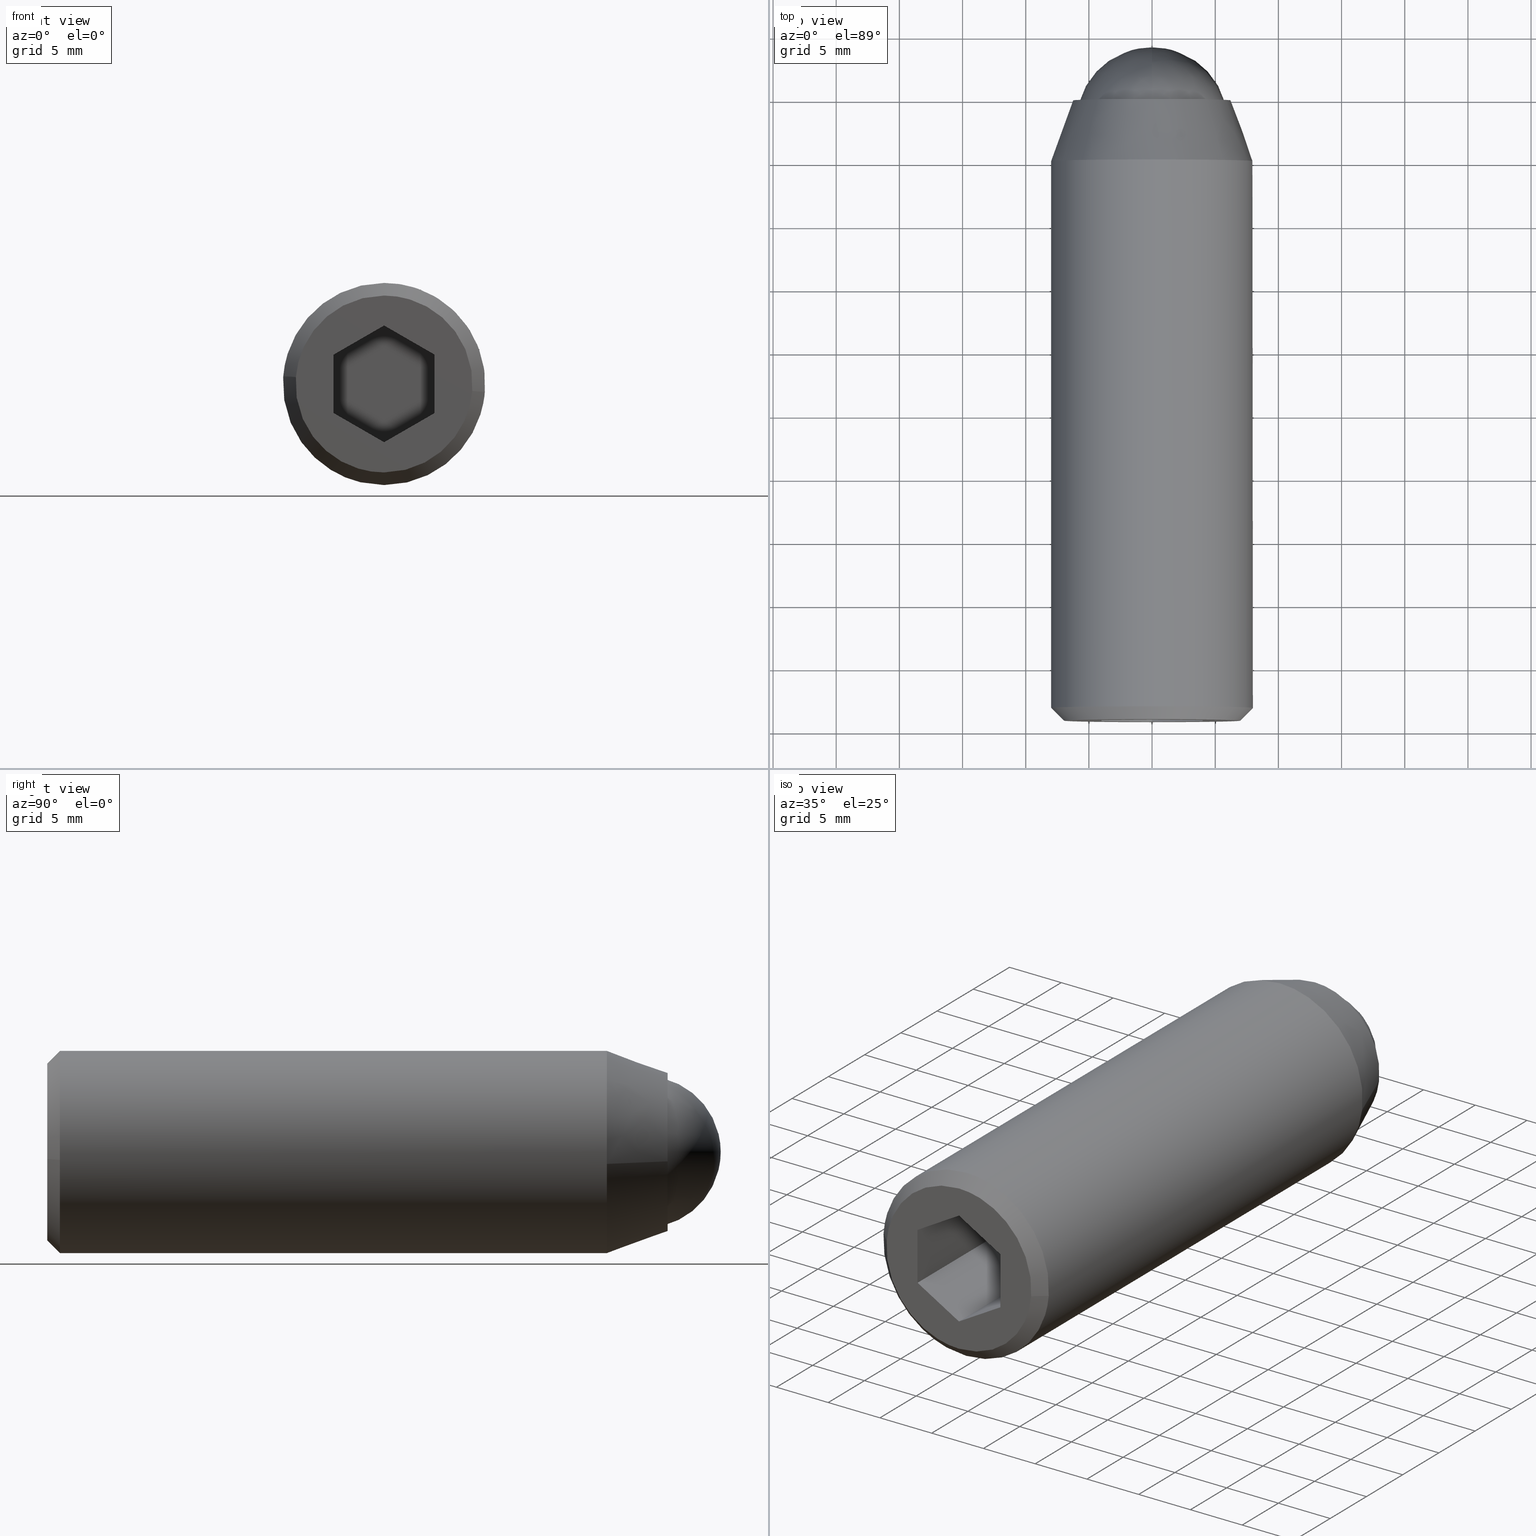
[diagram: canonical four-view strip — front | top / right | iso, engineering-drawing reading convention]
A machine part, canonical four-view strip (front | top / right | iso — engineering-drawing reading convention). The complete STEP part file that produces these views, byte-faithful:
ISO-10303-21;
HEADER;
/****************************************************************
 * Generated by software with PDE/Lib inside                    *
 * PDElib Version 4.4.1-0003, patched  Thursday August 19 11:58 *
 * International Technegroup Inc. (www.iti-oh.com)              *
 ****************************************************************/
FILE_DESCRIPTION((''),'2;1');
FILE_NAME('','2005-07-15T11:48:06',(''),(''),'','CADfix','');
FILE_SCHEMA(('AUTOMOTIVE_DESIGN'));
ENDSEC;
DATA;
#5=APPLICATION_CONTEXT('automotive design');
#6=APPLICATION_PROTOCOL_DEFINITION('Draft International Standard','automotive_design',1998,#5);
#7=PRODUCT_CONTEXT('None',#5,'mechanical');
#8=PRODUCT('body','','None',(#7));
#9=PRODUCT_RELATED_PRODUCT_CATEGORY('part','description',(#8));
#10=PRODUCT_DEFINITION_FORMATION('None','None',#8);
#11=PRODUCT_DEFINITION_CONTEXT('part definition',#5,'design');
#12=PRODUCT_DEFINITION('None','None',#10,#11);
#18=(NAMED_UNIT(*)PLANE_ANGLE_UNIT()SI_UNIT($,.RADIAN.));
#19=DIMENSIONAL_EXPONENTS(0.0,0.0,0.0,0.0,0.0,0.0,0.0);
#20=PLANE_ANGLE_MEASURE_WITH_UNIT(PLANE_ANGLE_MEASURE(0.017453292500000),#18);
#24=(CONVERSION_BASED_UNIT('DEGREE',#20)NAMED_UNIT(#19)PLANE_ANGLE_UNIT());
#28=(NAMED_UNIT(*)SI_UNIT($,.STERADIAN.)SOLID_ANGLE_UNIT());
#32=(LENGTH_UNIT()NAMED_UNIT(*)SI_UNIT(.MILLI.,.METRE.));
#34=UNCERTAINTY_MEASURE_WITH_UNIT(LENGTH_MEASURE(0.001000000000000),#32,'DISTANCE_ACCURACY_VALUE','');
#36=(GEOMETRIC_REPRESENTATION_CONTEXT(3)GLOBAL_UNCERTAINTY_ASSIGNED_CONTEXT((#34))GLOBAL_UNIT_ASSIGNED_CONTEXT((#24,#28,#32))REPRESENTATION_CONTEXT('None','None'));
#37=AXIS2_PLACEMENT_3D('',#38,#39,#40);
#38=CARTESIAN_POINT('',(0.0,0.0,0.0));
#39=DIRECTION('',(0.0,0.0,1.0));
#40=DIRECTION('',(1.0,0.0,0.0));
#41=ADVANCED_BREP_SHAPE_REPRESENTATION('',(#37,#945,#1156),#36);
#42=PRODUCT_DEFINITION_SHAPE('','',#12);
#43=SHAPE_DEFINITION_REPRESENTATION(#42,#41);
#44=CARTESIAN_POINT('',(-5.958057158181998,0.225000000000000,0.708205407940551));
#45=CARTESIAN_POINT('',(-5.978325692691634,0.225000000000000,0.537688371827866));
#46=CARTESIAN_POINT('',(-5.988808790531200,0.225000000000000,0.366291237209142));
#47=CARTESIAN_POINT('',(-6.355100027740342,0.225000000000000,-5.622517553322059));
#48=CARTESIAN_POINT('',(-0.366291237209142,0.225000000000000,-5.988808790531200));
#49=CARTESIAN_POINT('',(5.622517553322059,0.225000000000000,-6.355100027740342));
#50=CARTESIAN_POINT('',(5.988808790531200,0.225000000000000,-0.366291237209142));
#51=CARTESIAN_POINT('',(-5.958057158181998,-9.230625000000003,0.708205407940551));
#52=CARTESIAN_POINT('',(-5.978325692691634,-9.230625000000005,0.537688371827866));
#53=CARTESIAN_POINT('',(-5.988808790531200,-9.230625000000003,0.366291237209142));
#54=CARTESIAN_POINT('',(-6.355100027740342,-9.230625000000003,-5.622517553322059));
#55=CARTESIAN_POINT('',(-0.366291237209142,-9.230625000000003,-5.988808790531200));
#56=CARTESIAN_POINT('',(5.622517553322059,-9.230625000000003,-6.355100027740342));
#57=CARTESIAN_POINT('',(5.988808790531200,-9.230625000000003,-0.366291237209142));
#65=(BOUNDED_SURFACE()B_SPLINE_SURFACE(2,1,((#44,#51),(#45,#52),(#46,#53),(#47,#54),(#48,#55),(#49,#56),(#50,#57)),.UNSPECIFIED.,.F.,.F.,.U.)B_SPLINE_SURFACE_WITH_KNOTS((3,2,2,3),(2,2),(0.0,0.397645019878172,10.338770516832451,20.279896013786729),(0.0,9.455625000000005),.UNSPECIFIED.)GEOMETRIC_REPRESENTATION_ITEM()RATIONAL_B_SPLINE_SURFACE(((0.977505800795127,0.977505800795127),(0.988284271247462,0.988284271247462),(1.0,1.0),(0.707106781186548,0.707106781186548),(1.0,1.0),(0.707106781186548,0.707106781186548),(1.0,1.0)))REPRESENTATION_ITEM('')SURFACE());
#66=CARTESIAN_POINT('',(-5.958057200511979,-9.0,0.708205051822716));
#67=VERTEX_POINT('',#66);
#68=CARTESIAN_POINT('',(0.0,-9.0,-6.0));
#69=VERTEX_POINT('',#68);
#70=CARTESIAN_POINT('',(-5.958057200511979,-9.0,0.708205051822716));
#71=CARTESIAN_POINT('',(-5.999999999999999,-9.0,0.355344358028798));
#72=CARTESIAN_POINT('',(-6.0,-9.0,0.0));
#73=CARTESIAN_POINT('',(-6.0,-9.000000000000002,-6.0));
#74=CARTESIAN_POINT('',(0.0,-9.0,-6.0));
#82=(BOUNDED_CURVE()B_SPLINE_CURVE(2,(#70,#71,#72,#73,#74),.UNSPECIFIED.,.F.,.U.)B_SPLINE_CURVE_WITH_KNOTS((3,2,3),(0.229562493718563,0.250000000000000,0.500000000000000),.UNSPECIFIED.)CURVE()GEOMETRIC_REPRESENTATION_ITEM()RATIONAL_B_SPLINE_CURVE((0.956026793786437,0.976055972002839,1.0,0.707106781186548,1.0))REPRESENTATION_ITEM(''));
#83=EDGE_CURVE('',#67,#69,#82,.T.);
#84=ORIENTED_EDGE('',*,*,#83,.T.);
#85=CARTESIAN_POINT('',(5.988808790529386,-9.0,-0.366291237238826));
#86=VERTEX_POINT('',#85);
#87=CARTESIAN_POINT('',(0.0,-9.0,-6.0));
#88=CARTESIAN_POINT('',(5.644236401378098,-9.0,-6.000000000000001));
#89=CARTESIAN_POINT('',(5.988808790529386,-9.000000000000002,-0.366291237238826));
#97=(BOUNDED_CURVE()B_SPLINE_CURVE(2,(#87,#88,#89),.UNSPECIFIED.,.F.,.U.)B_SPLINE_CURVE_WITH_KNOTS((3,3),(0.500000000000000,0.739332962240257),.UNSPECIFIED.)CURVE()GEOMETRIC_REPRESENTATION_ITEM()RATIONAL_B_SPLINE_CURVE((1.0,0.719603993285170,0.976072041669535))REPRESENTATION_ITEM(''));
#98=EDGE_CURVE('',#69,#86,#97,.T.);
#99=ORIENTED_EDGE('',*,*,#98,.T.);
#100=CARTESIAN_POINT('',(5.988808790529386,3.053113E-016,-0.366291237238826));
#101=VERTEX_POINT('',#100);
#102=CARTESIAN_POINT('',(5.988808790529386,3.053113E-016,-0.366291237238826));
#103=CARTESIAN_POINT('',(5.988808790529386,-9.0,-0.366291237238826));
#104=QUASI_UNIFORM_CURVE('',1,(#102,#103),.UNSPECIFIED.,.F.,.U.);
#105=EDGE_CURVE('',#101,#86,#104,.T.);
#106=ORIENTED_EDGE('',*,*,#105,.F.);
#107=CARTESIAN_POINT('',(0.0,0.0,-6.0));
#108=VERTEX_POINT('',#107);
#109=CARTESIAN_POINT('',(0.0,0.0,-6.0));
#110=CARTESIAN_POINT('',(5.644236401378098,0.0,-6.000000000000001));
#111=CARTESIAN_POINT('',(5.988808790529386,3.053113E-016,-0.366291237238826));
#119=(BOUNDED_CURVE()B_SPLINE_CURVE(2,(#109,#110,#111),.UNSPECIFIED.,.F.,.U.)B_SPLINE_CURVE_WITH_KNOTS((3,3),(0.500000000000000,0.739332962240257),.UNSPECIFIED.)CURVE()GEOMETRIC_REPRESENTATION_ITEM()RATIONAL_B_SPLINE_CURVE((1.0,0.719603993285170,0.976072041669535))REPRESENTATION_ITEM(''));
#120=EDGE_CURVE('',#108,#101,#119,.T.);
#121=ORIENTED_EDGE('',*,*,#120,.F.);
#122=CARTESIAN_POINT('',(-5.958057199990673,-2.271543E-016,0.708205056208419));
#123=VERTEX_POINT('',#122);
#124=CARTESIAN_POINT('',(-5.958057199990673,-2.271543E-016,0.708205056208419));
#125=CARTESIAN_POINT('',(-5.999999999999999,0.0,0.355344362460866));
#126=CARTESIAN_POINT('',(-6.0,0.0,0.0));
#127=CARTESIAN_POINT('',(-6.0,0.0,-6.0));
#128=CARTESIAN_POINT('',(0.0,0.0,-6.0));
#136=(BOUNDED_CURVE()B_SPLINE_CURVE(2,(#124,#125,#126,#127,#128),.UNSPECIFIED.,.F.,.U.)B_SPLINE_CURVE_WITH_KNOTS((3,2,3),(0.229562493469758,0.250000000000000,0.500000000000000),.UNSPECIFIED.)CURVE()GEOMETRIC_REPRESENTATION_ITEM()RATIONAL_B_SPLINE_CURVE((0.956026793298769,0.976055971711346,1.0,0.707106781186548,1.0))REPRESENTATION_ITEM(''));
#137=EDGE_CURVE('',#123,#108,#136,.T.);
#138=ORIENTED_EDGE('',*,*,#137,.F.);
#139=CARTESIAN_POINT('',(-5.958057199990673,-2.271543E-016,0.708205056208419));
#140=CARTESIAN_POINT('',(-5.958057200511979,-9.0,0.708205051822716));
#141=QUASI_UNIFORM_CURVE('',1,(#139,#140),.UNSPECIFIED.,.F.,.U.);
#142=EDGE_CURVE('',#123,#67,#141,.T.);
#143=ORIENTED_EDGE('',*,*,#142,.T.);
#144=EDGE_LOOP('',(#84,#99,#106,#121,#138,#143));
#145=FACE_OUTER_BOUND('',#144,.T.);
#146=ADVANCED_FACE('',(#145),#65,.F.);
#147=CARTESIAN_POINT('',(5.988808790531200,0.225000000000000,-0.366291237209142));
#148=CARTESIAN_POINT('',(6.355100027740342,0.225000000000000,5.622517553322059));
#149=CARTESIAN_POINT('',(0.366291237209142,0.225000000000000,5.988808790531200));
#150=CARTESIAN_POINT('',(-5.289260945037006,0.225000000000000,6.334717180395164));
#151=CARTESIAN_POINT('',(-5.958057158181998,0.225000000000000,0.708205407940551));
#152=CARTESIAN_POINT('',(5.988808790531200,-9.230625000000003,-0.366291237209142));
#153=CARTESIAN_POINT('',(6.355100027740342,-9.230625000000003,5.622517553322059));
#154=CARTESIAN_POINT('',(0.366291237209142,-9.230625000000003,5.988808790531200));
#155=CARTESIAN_POINT('',(-5.289260945037006,-9.230625000000003,6.334717180395164));
#156=CARTESIAN_POINT('',(-5.958057158181998,-9.230625000000003,0.708205407940551));
#164=(BOUNDED_SURFACE()B_SPLINE_SURFACE(2,1,((#147,#152),(#148,#153),(#149,#154),(#150,#155),(#151,#156)),.UNSPECIFIED.,.F.,.F.,.U.)B_SPLINE_SURFACE_WITH_KNOTS((3,2,3),(2,2),(0.0,9.941125496954278,19.484605974030391),(0.0,9.455625000000005),.UNSPECIFIED.)GEOMETRIC_REPRESENTATION_ITEM()RATIONAL_B_SPLINE_SURFACE(((1.0,1.0),(0.707106781186548,0.707106781186548),(1.0,1.0),(0.718822509939086,0.718822509939086),(0.977505800795127,0.977505800795127)))REPRESENTATION_ITEM('')SURFACE());
#165=CARTESIAN_POINT('',(0.0,-9.0,6.0));
#166=VERTEX_POINT('',#165);
#167=CARTESIAN_POINT('',(0.0,-9.0,6.0));
#168=CARTESIAN_POINT('',(-5.329047797235627,-9.000000000000002,6.000000000000001));
#169=CARTESIAN_POINT('',(-5.958057200511979,-9.0,0.708205051822716));
#177=(BOUNDED_CURVE()B_SPLINE_CURVE(2,(#167,#168,#169),.UNSPECIFIED.,.F.,.U.)B_SPLINE_CURVE_WITH_KNOTS((3,3),(0.0,0.229562493718563),.UNSPECIFIED.)CURVE()GEOMETRIC_REPRESENTATION_ITEM()RATIONAL_B_SPLINE_CURVE((1.0,0.731050809183708,0.956026793786437))REPRESENTATION_ITEM(''));
#178=EDGE_CURVE('',#166,#67,#177,.T.);
#179=ORIENTED_EDGE('',*,*,#178,.T.);
#180=ORIENTED_EDGE('',*,*,#142,.F.);
#181=CARTESIAN_POINT('',(0.0,0.0,6.0));
#182=VERTEX_POINT('',#181);
#183=CARTESIAN_POINT('',(0.0,0.0,6.0));
#184=CARTESIAN_POINT('',(-5.329047789335011,0.0,6.000000000000001));
#185=CARTESIAN_POINT('',(-5.958057199990673,-2.271543E-016,0.708205056208419));
#193=(BOUNDED_CURVE()B_SPLINE_CURVE(2,(#183,#184,#185),.UNSPECIFIED.,.F.,.U.)B_SPLINE_CURVE_WITH_KNOTS((3,3),(0.0,0.229562493469758),.UNSPECIFIED.)CURVE()GEOMETRIC_REPRESENTATION_ITEM()RATIONAL_B_SPLINE_CURVE((1.0,0.731050809475202,0.956026793298769))REPRESENTATION_ITEM(''));
#194=EDGE_CURVE('',#182,#123,#193,.T.);
#195=ORIENTED_EDGE('',*,*,#194,.F.);
#196=CARTESIAN_POINT('',(5.988808790529386,3.053113E-016,-0.366291237238826));
#197=CARTESIAN_POINT('',(6.0,0.0,-0.183316579821301));
#198=CARTESIAN_POINT('',(6.0,0.0,0.0));
#199=CARTESIAN_POINT('',(6.0,0.0,6.0));
#200=CARTESIAN_POINT('',(0.0,0.0,6.0));
#208=(BOUNDED_CURVE()B_SPLINE_CURVE(2,(#196,#197,#198,#199,#200),.UNSPECIFIED.,.F.,.U.)B_SPLINE_CURVE_WITH_KNOTS((3,2,3),(0.739332962240258,0.750000000000000,1.0),.UNSPECIFIED.)CURVE()GEOMETRIC_REPRESENTATION_ITEM()RATIONAL_B_SPLINE_CURVE((0.976072041669536,0.987502787901378,1.0,0.707106781186548,1.0))REPRESENTATION_ITEM(''));
#209=EDGE_CURVE('',#101,#182,#208,.T.);
#210=ORIENTED_EDGE('',*,*,#209,.F.);
#211=ORIENTED_EDGE('',*,*,#105,.T.);
#212=CARTESIAN_POINT('',(5.988808790529386,-9.0,-0.366291237238826));
#213=CARTESIAN_POINT('',(6.0,-9.0,-0.183316579821301));
#214=CARTESIAN_POINT('',(6.0,-9.0,0.0));
#215=CARTESIAN_POINT('',(6.0,-9.000000000000002,6.0));
#216=CARTESIAN_POINT('',(0.0,-9.0,6.0));
#224=(BOUNDED_CURVE()B_SPLINE_CURVE(2,(#212,#213,#214,#215,#216),.UNSPECIFIED.,.F.,.U.)B_SPLINE_CURVE_WITH_KNOTS((3,2,3),(0.739332962240258,0.750000000000000,1.0),.UNSPECIFIED.)CURVE()GEOMETRIC_REPRESENTATION_ITEM()RATIONAL_B_SPLINE_CURVE((0.976072041669536,0.987502787901378,1.0,0.707106781186548,1.0))REPRESENTATION_ITEM(''));
#225=EDGE_CURVE('',#86,#166,#224,.T.);
#226=ORIENTED_EDGE('',*,*,#225,.T.);
#227=EDGE_LOOP('',(#179,#180,#195,#210,#211,#226));
#228=FACE_OUTER_BOUND('',#227,.T.);
#229=ADVANCED_FACE('',(#228),#164,.F.);
#230=CARTESIAN_POINT('',(-1.874588911880106,-3.725788149999997,-7.777269212998617));
#231=CARTESIAN_POINT('',(-1.190626377330084,-3.725788149999997,-7.942127667591645));
#232=CARTESIAN_POINT('',(-0.488388316278856,-3.725788149999997,-7.985078387374935));
#233=CARTESIAN_POINT('',(7.496690071096078,-3.725788149999997,-8.473466703653791));
#234=CARTESIAN_POINT('',(7.985078387374934,-3.725788149999997,-0.488388316278857));
#235=CARTESIAN_POINT('',(8.473466703653790,-3.725788149999997,7.496690071096077));
#236=CARTESIAN_POINT('',(0.488388316278856,-3.725788149999997,7.985078387374933));
#237=CARTESIAN_POINT('',(-7.496690071096078,-3.725788149999997,8.473466703653788));
#238=CARTESIAN_POINT('',(-7.985078387374934,-3.725788149999997,0.488388316278855));
#239=CARTESIAN_POINT('',(-1.874588911880106,-49.209355296250010,-7.777269212998617));
#240=CARTESIAN_POINT('',(-1.190626377330084,-49.209355296250010,-7.942127667591645));
#241=CARTESIAN_POINT('',(-0.488388316278856,-49.209355296250010,-7.985078387374935));
#242=CARTESIAN_POINT('',(7.496690071096078,-49.209355296250010,-8.473466703653791));
#243=CARTESIAN_POINT('',(7.985078387374934,-49.209355296250010,-0.488388316278857));
#244=CARTESIAN_POINT('',(8.473466703653790,-49.209355296250010,7.496690071096077));
#245=CARTESIAN_POINT('',(0.488388316278856,-49.209355296250010,7.985078387374933));
#246=CARTESIAN_POINT('',(-7.496690071096078,-49.209355296250010,8.473466703653788));
#247=CARTESIAN_POINT('',(-7.985078387374934,-49.209355296250010,0.488388316278855));
#255=(BOUNDED_SURFACE()B_SPLINE_SURFACE(2,1,((#230,#239),(#231,#240),(#232,#241),(#233,#242),(#234,#243),(#235,#244),(#236,#245),(#237,#246),(#238,#247)),.UNSPECIFIED.,.F.,.F.,.U.)B_SPLINE_SURFACE_WITH_KNOTS((3,2,2,2,3),(2,2),(0.0,1.590580079512685,14.845414075451730,28.100248071390769,41.355082067329803),(0.0,45.483567146250017),.UNSPECIFIED.)GEOMETRIC_REPRESENTATION_ITEM()RATIONAL_B_SPLINE_SURFACE(((0.938140952186599,0.938140952186599),(0.964852813742386,0.964852813742386),(1.0,1.0),(0.707106781186548,0.707106781186548),(1.0,1.0),(0.707106781186548,0.707106781186548),(1.0,1.0),(0.707106781186548,0.707106781186548),(1.0,1.0)))REPRESENTATION_ITEM('')SURFACE());
#256=CARTESIAN_POINT('',(-1.874588911888321,-48.099999999999987,-7.777269212996639));
#257=VERTEX_POINT('',#256);
#258=CARTESIAN_POINT('',(0.0,-48.099999999999987,-8.000000000000002));
#259=VERTEX_POINT('',#258);
#260=CARTESIAN_POINT('',(-1.874588911888321,-48.100000000000001,-7.777269212996639));
#261=CARTESIAN_POINT('',(-0.950526424612221,-48.099999999999987,-8.000000000000002));
#262=CARTESIAN_POINT('',(0.0,-48.099999999999987,-8.000000000000002));
#270=(BOUNDED_CURVE()B_SPLINE_CURVE(2,(#260,#261,#262),.UNSPECIFIED.,.F.,.U.)B_SPLINE_CURVE_WITH_KNOTS((3,3),(0.959962709885903,1.0),.UNSPECIFIED.)CURVE()GEOMETRIC_REPRESENTATION_ITEM()RATIONAL_B_SPLINE_CURVE((0.921210900018794,0.953093396903657,1.0))REPRESENTATION_ITEM(''));
#271=EDGE_CURVE('',#257,#259,#270,.T.);
#272=ORIENTED_EDGE('',*,*,#271,.F.);
#273=CARTESIAN_POINT('',(-1.874588911888321,-4.808085999999999,-7.777269212996639));
#274=VERTEX_POINT('',#273);
#275=CARTESIAN_POINT('',(-1.874588911888321,-4.808085999999999,-7.777269212996639));
#276=CARTESIAN_POINT('',(-1.874588911888321,-48.099999999999987,-7.777269212996639));
#277=QUASI_UNIFORM_CURVE('',1,(#275,#276),.UNSPECIFIED.,.F.,.U.);
#278=EDGE_CURVE('',#274,#257,#277,.T.);
#279=ORIENTED_EDGE('',*,*,#278,.F.);
#280=CARTESIAN_POINT('',(0.0,-4.808085999999999,-8.000000000000002));
#281=VERTEX_POINT('',#280);
#282=CARTESIAN_POINT('',(-1.874588911888321,-4.808086000000000,-7.777269212996639));
#283=CARTESIAN_POINT('',(-0.950526424612221,-4.808085999999999,-8.000000000000002));
#284=CARTESIAN_POINT('',(0.0,-4.808085999999999,-8.000000000000002));
#292=(BOUNDED_CURVE()B_SPLINE_CURVE(2,(#282,#283,#284),.UNSPECIFIED.,.F.,.U.)B_SPLINE_CURVE_WITH_KNOTS((3,3),(0.959962709885903,1.0),.UNSPECIFIED.)CURVE()GEOMETRIC_REPRESENTATION_ITEM()RATIONAL_B_SPLINE_CURVE((0.921210900018794,0.953093396903657,1.0))REPRESENTATION_ITEM(''));
#293=EDGE_CURVE('',#274,#281,#292,.T.);
#294=ORIENTED_EDGE('',*,*,#293,.T.);
#295=CARTESIAN_POINT('',(7.944076210907147,-4.808086000008145,-0.944273877297554));
#296=VERTEX_POINT('',#295);
#297=CARTESIAN_POINT('',(0.0,-4.808085999999999,-8.000000000000002));
#298=CARTESIAN_POINT('',(7.105396207533238,-4.808085999999999,-8.000000000000002));
#299=CARTESIAN_POINT('',(7.944076210907147,-4.808086000008145,-0.944273877297554));
#307=(BOUNDED_CURVE()B_SPLINE_CURVE(2,(#297,#298,#299),.UNSPECIFIED.,.F.,.U.)B_SPLINE_CURVE_WITH_KNOTS((3,3),(0.0,0.229562473513809),.UNSPECIFIED.)CURVE()GEOMETRIC_REPRESENTATION_ITEM()RATIONAL_B_SPLINE_CURVE((1.0,0.731050832855050,0.956026754184289))REPRESENTATION_ITEM(''));
#308=EDGE_CURVE('',#281,#296,#307,.T.);
#309=ORIENTED_EDGE('',*,*,#308,.T.);
#310=CARTESIAN_POINT('',(0.0,-4.808085999999999,7.999999999999998));
#311=VERTEX_POINT('',#310);
#312=CARTESIAN_POINT('',(7.944076210907147,-4.808086000008145,-0.944273877297554));
#313=CARTESIAN_POINT('',(8.0,-4.808086000000000,-0.473792957258873));
#314=CARTESIAN_POINT('',(8.0,-4.808085999999999,-1.291960E-015));
#315=CARTESIAN_POINT('',(8.0,-4.808086000000000,7.999999999999999));
#316=CARTESIAN_POINT('',(0.0,-4.808085999999999,7.999999999999998));
#324=(BOUNDED_CURVE()B_SPLINE_CURVE(2,(#312,#313,#314,#315,#316),.UNSPECIFIED.,.F.,.U.)B_SPLINE_CURVE_WITH_KNOTS((3,2,3),(0.229562473513809,0.250000000000000,0.500000000000000),.UNSPECIFIED.)CURVE()GEOMETRIC_REPRESENTATION_ITEM()RATIONAL_B_SPLINE_CURVE((0.956026754184288,0.976055948331497,1.0,0.707106781186548,1.0))REPRESENTATION_ITEM(''));
#325=EDGE_CURVE('',#296,#311,#324,.T.);
#326=ORIENTED_EDGE('',*,*,#325,.T.);
#327=CARTESIAN_POINT('',(-7.985078387375163,-4.808086000010075,0.488388316320178));
#328=VERTEX_POINT('',#327);
#329=CARTESIAN_POINT('',(0.0,-4.808085999999999,7.999999999999998));
#330=CARTESIAN_POINT('',(-7.525648535141883,-4.808085999999999,7.999999999999999));
#331=CARTESIAN_POINT('',(-7.985078387375163,-4.808086000010075,0.488388316320178));
#339=(BOUNDED_CURVE()B_SPLINE_CURVE(2,(#329,#330,#331),.UNSPECIFIED.,.F.,.U.)B_SPLINE_CURVE_WITH_KNOTS((3,3),(0.500000000000000,0.739332962239596),.UNSPECIFIED.)CURVE()GEOMETRIC_REPRESENTATION_ITEM()RATIONAL_B_SPLINE_CURVE((1.0,0.719603993285945,0.976072041668117))REPRESENTATION_ITEM(''));
#340=EDGE_CURVE('',#311,#328,#339,.T.);
#341=ORIENTED_EDGE('',*,*,#340,.T.);
#342=CARTESIAN_POINT('',(-7.985078427886355,-48.099999999999987,0.488387653922092));
#343=VERTEX_POINT('',#342);
#344=CARTESIAN_POINT('',(-7.985078387375163,-4.808086000010075,0.488388316320178));
#345=CARTESIAN_POINT('',(-7.985078427886355,-48.099999999999987,0.488387653922092));
#346=QUASI_UNIFORM_CURVE('',1,(#344,#345),.UNSPECIFIED.,.F.,.U.);
#347=EDGE_CURVE('',#328,#343,#346,.T.);
#348=ORIENTED_EDGE('',*,*,#347,.T.);
#349=CARTESIAN_POINT('',(-7.975338669871608,-48.099999999983417,0.627672765950198));
#350=VERTEX_POINT('',#349);
#351=CARTESIAN_POINT('',(-7.975338669871609,-48.099999999983424,0.627672765950198));
#352=CARTESIAN_POINT('',(-7.980816339169483,-48.100000000000009,0.558072378191406));
#353=CARTESIAN_POINT('',(-7.985078427886355,-48.099999999999994,0.488387653922092));
#361=(BOUNDED_CURVE()B_SPLINE_CURVE(2,(#351,#352,#353),.UNSPECIFIED.,.F.,.U.)B_SPLINE_CURVE_WITH_KNOTS((3,3),(0.736331300627344,0.739332990867243),.UNSPECIFIED.)CURVE()GEOMETRIC_REPRESENTATION_ITEM()RATIONAL_B_SPLINE_CURVE((0.969723356160499,0.972855505428922,0.976072103022623))REPRESENTATION_ITEM(''));
#362=EDGE_CURVE('',#350,#343,#361,.T.);
#363=ORIENTED_EDGE('',*,*,#362,.F.);
#364=CARTESIAN_POINT('',(0.0,-48.099999999999987,7.999999999999998));
#365=VERTEX_POINT('',#364);
#366=CARTESIAN_POINT('',(0.0,-48.099999999999987,7.999999999999998));
#367=CARTESIAN_POINT('',(-7.395123933030983,-48.099999999999987,7.999999999999999));
#368=CARTESIAN_POINT('',(-7.975338669871608,-48.099999999983424,0.627672765950198));
#376=(BOUNDED_CURVE()B_SPLINE_CURVE(2,(#366,#367,#368),.UNSPECIFIED.,.F.,.U.)B_SPLINE_CURVE_WITH_KNOTS((3,3),(0.500000000000000,0.736331300627344),.UNSPECIFIED.)CURVE()GEOMETRIC_REPRESENTATION_ITEM()RATIONAL_B_SPLINE_CURVE((1.0,0.723120658611550,0.969723356160498))REPRESENTATION_ITEM(''));
#377=EDGE_CURVE('',#365,#350,#376,.T.);
#378=ORIENTED_EDGE('',*,*,#377,.F.);
#379=CARTESIAN_POINT('',(7.975338669871608,-48.099999999983417,-0.627672765950198));
#380=VERTEX_POINT('',#379);
#381=CARTESIAN_POINT('',(7.975338669871608,-48.099999999983424,-0.627672765950198));
#382=CARTESIAN_POINT('',(8.000000000000002,-48.100000000000001,-0.314320856188079));
#383=CARTESIAN_POINT('',(8.0,-48.099999999999987,-1.291960E-015));
#384=CARTESIAN_POINT('',(8.0,-48.100000000000009,7.999999999999999));
#385=CARTESIAN_POINT('',(0.0,-48.099999999999987,7.999999999999998));
#393=(BOUNDED_CURVE()B_SPLINE_CURVE(2,(#381,#382,#383,#384,#385),.UNSPECIFIED.,.F.,.U.)B_SPLINE_CURVE_WITH_KNOTS((3,2,3),(0.236331300627345,0.250000000000000,0.500000000000000),.UNSPECIFIED.)CURVE()GEOMETRIC_REPRESENTATION_ITEM()RATIONAL_B_SPLINE_CURVE((0.969723356160499,0.983986122574998,1.0,0.707106781186548,1.0))REPRESENTATION_ITEM(''));
#394=EDGE_CURVE('',#380,#365,#393,.T.);
#395=ORIENTED_EDGE('',*,*,#394,.F.);
#396=CARTESIAN_POINT('',(0.0,-48.099999999999987,-8.000000000000002));
#397=CARTESIAN_POINT('',(7.395123933031013,-48.099999999999994,-8.000000000000002));
#398=CARTESIAN_POINT('',(7.975338669871608,-48.099999999983424,-0.627672765950198));
#406=(BOUNDED_CURVE()B_SPLINE_CURVE(2,(#396,#397,#398),.UNSPECIFIED.,.F.,.U.)B_SPLINE_CURVE_WITH_KNOTS((3,3),(0.0,0.236331300627345),.UNSPECIFIED.)CURVE()GEOMETRIC_REPRESENTATION_ITEM()RATIONAL_B_SPLINE_CURVE((1.0,0.723120658611550,0.969723356160499))REPRESENTATION_ITEM(''));
#407=EDGE_CURVE('',#259,#380,#406,.T.);
#408=ORIENTED_EDGE('',*,*,#407,.F.);
#409=EDGE_LOOP('',(#272,#279,#294,#309,#326,#341,#348,#363,#378,#395,#408));
#410=FACE_OUTER_BOUND('',#409,.T.);
#411=ADVANCED_FACE('',(#410),#255,.T.);
#412=CARTESIAN_POINT('',(-7.985078387374934,-3.725788149999997,0.488388316278855));
#413=CARTESIAN_POINT('',(-8.394509095444208,-3.725788149999997,-6.205744588130942));
#414=CARTESIAN_POINT('',(-1.874588911880106,-3.725788149999997,-7.777269212998617));
#415=CARTESIAN_POINT('',(-7.985078387374934,-49.209355296250010,0.488388316278855));
#416=CARTESIAN_POINT('',(-8.394509095444208,-49.209355296250010,-6.205744588130942));
#417=CARTESIAN_POINT('',(-1.874588911880106,-49.209355296250010,-7.777269212998617));
#425=(BOUNDED_SURFACE()B_SPLINE_SURFACE(2,1,((#412,#415),(#413,#416),(#414,#417)),.UNSPECIFIED.,.F.,.F.,.U.)B_SPLINE_SURFACE_WITH_KNOTS((3,3),(2,2),(0.0,11.635506658838469),(0.0,45.483567146250017),.UNSPECIFIED.)GEOMETRIC_REPRESENTATION_ITEM()RATIONAL_B_SPLINE_SURFACE(((1.0,1.0),(0.742253967444162,0.742253967444162),(0.938140952186599,0.938140952186599)))REPRESENTATION_ITEM('')SURFACE());
#426=CARTESIAN_POINT('',(-7.985078427886355,-48.099999999999994,0.488387653922092));
#427=CARTESIAN_POINT('',(-8.0,-48.099999999999994,0.244421442174768));
#428=CARTESIAN_POINT('',(-8.0,-48.099999999999987,-1.291960E-015));
#429=CARTESIAN_POINT('',(-8.0,-48.100000000000001,-6.300834825538831));
#430=CARTESIAN_POINT('',(-1.874588911888321,-48.100000000000001,-7.777269212996639));
#438=(BOUNDED_CURVE()B_SPLINE_CURVE(2,(#426,#427,#428,#429,#430),.UNSPECIFIED.,.F.,.U.)B_SPLINE_CURVE_WITH_KNOTS((3,2,3),(0.739332990867244,0.750000000000000,0.959962709885903),.UNSPECIFIED.)CURVE()GEOMETRIC_REPRESENTATION_ITEM()RATIONAL_B_SPLINE_CURVE((0.976072103022625,0.987502821439979,1.0,0.754013384282891,0.921210900018794))REPRESENTATION_ITEM(''));
#439=EDGE_CURVE('',#343,#257,#438,.T.);
#440=ORIENTED_EDGE('',*,*,#439,.F.);
#441=ORIENTED_EDGE('',*,*,#347,.F.);
#442=CARTESIAN_POINT('',(-7.985078387375163,-4.808086000010075,0.488388316320178));
#443=CARTESIAN_POINT('',(-8.0,-4.808085999999999,0.244422106443738));
#444=CARTESIAN_POINT('',(-8.0,-4.808085999999999,-1.291960E-015));
#445=CARTESIAN_POINT('',(-8.000000000000002,-4.808085999999999,-6.300834825538809));
#446=CARTESIAN_POINT('',(-1.874588911888321,-4.808086000000000,-7.777269212996640));
#454=(BOUNDED_CURVE()B_SPLINE_CURVE(2,(#442,#443,#444,#445,#446),.UNSPECIFIED.,.F.,.U.)B_SPLINE_CURVE_WITH_KNOTS((3,2,3),(0.739332962239597,0.750000000000000,0.959962709885903),.UNSPECIFIED.)CURVE()GEOMETRIC_REPRESENTATION_ITEM()RATIONAL_B_SPLINE_CURVE((0.976072041668119,0.987502787900603,1.0,0.754013384282891,0.921210900018793))REPRESENTATION_ITEM(''));
#455=EDGE_CURVE('',#328,#274,#454,.T.);
#456=ORIENTED_EDGE('',*,*,#455,.T.);
#457=ORIENTED_EDGE('',*,*,#278,.T.);
#458=EDGE_LOOP('',(#440,#441,#456,#457));
#459=FACE_OUTER_BOUND('',#458,.T.);
#460=ADVANCED_FACE('',(#459),#425,.T.);
#461=CARTESIAN_POINT('',(6.953498402788556,-49.125000000000000,-0.547252192701723));
#462=CARTESIAN_POINT('',(6.406246210086835,-49.125000000000000,-7.500750595490278));
#463=CARTESIAN_POINT('',(-0.547252192701722,-49.125000000000000,-6.953498402788557));
#464=CARTESIAN_POINT('',(-7.500750595490278,-49.125000000000000,-6.406246210086835));
#465=CARTESIAN_POINT('',(-6.953498402788556,-49.125000000000000,0.547252192701721));
#466=CARTESIAN_POINT('',(8.000884676541924,-48.074374999999989,-0.629683280150791));
#467=CARTESIAN_POINT('',(7.371201396391133,-48.074374999999989,-8.630567956692715));
#468=CARTESIAN_POINT('',(-0.629683280150790,-48.074374999999989,-8.000884676541926));
#469=CARTESIAN_POINT('',(-8.630567956692714,-48.074374999999989,-7.371201396391135));
#470=CARTESIAN_POINT('',(-8.000884676541924,-48.074374999999989,0.629683280150788));
#478=(BOUNDED_SURFACE()B_SPLINE_SURFACE(2,1,((#461,#466),(#462,#467),(#463,#468),(#464,#469),(#465,#470)),.UNSPECIFIED.,.F.,.F.,.U.)B_SPLINE_SURFACE_WITH_KNOTS((3,2,3),(2,2),(0.0,13.297290886082269,26.594581772164538),(0.0,1.0),.UNSPECIFIED.)GEOMETRIC_REPRESENTATION_ITEM()RATIONAL_B_SPLINE_SURFACE(((1.0,1.0),(0.707106781186548,0.707106781186548),(1.0,1.0),(0.707106781186548,0.707106781186548),(1.0,1.0)))REPRESENTATION_ITEM('')SURFACE());
#479=ORIENTED_EDGE('',*,*,#407,.T.);
#480=CARTESIAN_POINT('',(6.978421253376019,-49.100000088082872,-0.549213598948107));
#481=VERTEX_POINT('',#480);
#482=CARTESIAN_POINT('',(6.978421253376019,-49.100000088082872,-0.549213598948107));
#483=CARTESIAN_POINT('',(7.975338669871608,-48.099999999983417,-0.627672765950198));
#484=QUASI_UNIFORM_CURVE('',1,(#482,#483),.UNSPECIFIED.,.F.,.U.);
#485=EDGE_CURVE('',#481,#380,#484,.T.);
#486=ORIENTED_EDGE('',*,*,#485,.F.);
#487=CARTESIAN_POINT('',(0.0,-49.099999999999987,-7.000000000000001));
#488=VERTEX_POINT('',#487);
#489=CARTESIAN_POINT('',(0.0,-49.099999999999987,-7.000000000000001));
#490=CARTESIAN_POINT('',(6.470733561101162,-49.099999999999980,-7.000000000000002));
#491=CARTESIAN_POINT('',(6.978421253376019,-49.100000088082872,-0.549213598948107));
#499=(BOUNDED_CURVE()B_SPLINE_CURVE(2,(#489,#490,#491),.UNSPECIFIED.,.F.,.U.)B_SPLINE_CURVE_WITH_KNOTS((3,3),(0.0,0.236331303788669),.UNSPECIFIED.)CURVE()GEOMETRIC_REPRESENTATION_ITEM()RATIONAL_B_SPLINE_CURVE((1.0,0.723120654907827,0.969723362757943))REPRESENTATION_ITEM(''));
#500=EDGE_CURVE('',#488,#481,#499,.T.);
#501=ORIENTED_EDGE('',*,*,#500,.F.);
#502=CARTESIAN_POINT('',(-6.978421253376018,-49.100000088082872,0.549213598948106));
#503=VERTEX_POINT('',#502);
#504=CARTESIAN_POINT('',(-6.978421253376018,-49.100000088082865,0.549213598948106));
#505=CARTESIAN_POINT('',(-6.999999999999999,-49.099999999999994,0.275030684519681));
#506=CARTESIAN_POINT('',(-7.0,-49.099999999999987,-1.291960E-015));
#507=CARTESIAN_POINT('',(-6.999999999999999,-49.100000000000001,-7.000000000000002));
#508=CARTESIAN_POINT('',(0.0,-49.099999999999987,-7.000000000000001));
#516=(BOUNDED_CURVE()B_SPLINE_CURVE(2,(#504,#505,#506,#507,#508),.UNSPECIFIED.,.F.,.U.)B_SPLINE_CURVE_WITH_KNOTS((3,2,3),(0.736331303788669,0.750000000000000,1.0),.UNSPECIFIED.)CURVE()GEOMETRIC_REPRESENTATION_ITEM()RATIONAL_B_SPLINE_CURVE((0.969723362757943,0.983986126278720,1.0,0.707106781186547,1.0))REPRESENTATION_ITEM(''));
#517=EDGE_CURVE('',#503,#488,#516,.T.);
#518=ORIENTED_EDGE('',*,*,#517,.F.);
#519=CARTESIAN_POINT('',(-6.978421253376018,-49.100000088082872,0.549213598948106));
#520=CARTESIAN_POINT('',(-7.975338669871608,-48.099999999983417,0.627672765950198));
#521=QUASI_UNIFORM_CURVE('',1,(#519,#520),.UNSPECIFIED.,.F.,.U.);
#522=EDGE_CURVE('',#503,#350,#521,.T.);
#523=ORIENTED_EDGE('',*,*,#522,.T.);
#524=ORIENTED_EDGE('',*,*,#362,.T.);
#525=ORIENTED_EDGE('',*,*,#439,.T.);
#526=ORIENTED_EDGE('',*,*,#271,.T.);
#527=EDGE_LOOP('',(#479,#486,#501,#518,#523,#524,#525,#526));
#528=FACE_OUTER_BOUND('',#527,.T.);
#529=ADVANCED_FACE('',(#528),#478,.T.);
#530=CARTESIAN_POINT('',(-6.953498402788556,-49.125000000000000,0.547252192701721));
#531=CARTESIAN_POINT('',(-6.406246210086835,-49.125000000000000,7.500750595490277));
#532=CARTESIAN_POINT('',(0.547252192701722,-49.125000000000000,6.953498402788555));
#533=CARTESIAN_POINT('',(7.500750595490278,-49.125000000000000,6.406246210086834));
#534=CARTESIAN_POINT('',(6.953498402788556,-49.125000000000000,-0.547252192701723));
#535=CARTESIAN_POINT('',(-8.000884676541924,-48.074374999999989,0.629683280150788));
#536=CARTESIAN_POINT('',(-7.371201396391133,-48.074374999999989,8.630567956692712));
#537=CARTESIAN_POINT('',(0.629683280150790,-48.074374999999989,8.000884676541922));
#538=CARTESIAN_POINT('',(8.630567956692714,-48.074374999999989,7.371201396391133));
#539=CARTESIAN_POINT('',(8.000884676541924,-48.074374999999989,-0.629683280150791));
#547=(BOUNDED_SURFACE()B_SPLINE_SURFACE(2,1,((#530,#535),(#531,#536),(#532,#537),(#533,#538),(#534,#539)),.UNSPECIFIED.,.F.,.F.,.U.)B_SPLINE_SURFACE_WITH_KNOTS((3,2,3),(2,2),(0.0,13.297290886082269,26.594581772164531),(0.0,1.0),.UNSPECIFIED.)GEOMETRIC_REPRESENTATION_ITEM()RATIONAL_B_SPLINE_SURFACE(((1.0,1.0),(0.707106781186548,0.707106781186548),(1.0,1.0),(0.707106781186548,0.707106781186548),(1.0,1.0)))REPRESENTATION_ITEM('')SURFACE());
#548=ORIENTED_EDGE('',*,*,#394,.T.);
#549=ORIENTED_EDGE('',*,*,#377,.T.);
#550=ORIENTED_EDGE('',*,*,#522,.F.);
#551=CARTESIAN_POINT('',(0.0,-49.099999999999987,6.999999999999999));
#552=VERTEX_POINT('',#551);
#553=CARTESIAN_POINT('',(0.0,-49.099999999999987,6.999999999999999));
#554=CARTESIAN_POINT('',(-6.470733561101126,-49.099999999999994,7.0));
#555=CARTESIAN_POINT('',(-6.978421253376018,-49.100000088082872,0.549213598948106));
#563=(BOUNDED_CURVE()B_SPLINE_CURVE(2,(#553,#554,#555),.UNSPECIFIED.,.F.,.U.)B_SPLINE_CURVE_WITH_KNOTS((3,3),(0.500000000000000,0.736331303788668),.UNSPECIFIED.)CURVE()GEOMETRIC_REPRESENTATION_ITEM()RATIONAL_B_SPLINE_CURVE((1.0,0.723120654907828,0.969723362757941))REPRESENTATION_ITEM(''));
#564=EDGE_CURVE('',#552,#503,#563,.T.);
#565=ORIENTED_EDGE('',*,*,#564,.F.);
#566=CARTESIAN_POINT('',(6.978421253376018,-49.100000088082865,-0.549213598948107));
#567=CARTESIAN_POINT('',(7.000000000000001,-49.100000000000001,-0.275030684519683));
#568=CARTESIAN_POINT('',(7.0,-49.099999999999987,-1.291960E-015));
#569=CARTESIAN_POINT('',(6.999999999999999,-49.100000000000001,6.999999999999999));
#570=CARTESIAN_POINT('',(0.0,-49.099999999999987,6.999999999999999));
#578=(BOUNDED_CURVE()B_SPLINE_CURVE(2,(#566,#567,#568,#569,#570),.UNSPECIFIED.,.F.,.U.)B_SPLINE_CURVE_WITH_KNOTS((3,2,3),(0.236331303788669,0.250000000000000,0.500000000000000),.UNSPECIFIED.)CURVE()GEOMETRIC_REPRESENTATION_ITEM()RATIONAL_B_SPLINE_CURVE((0.969723362757943,0.983986126278720,1.0,0.707106781186547,1.0))REPRESENTATION_ITEM(''));
#579=EDGE_CURVE('',#481,#552,#578,.T.);
#580=ORIENTED_EDGE('',*,*,#579,.F.);
#581=ORIENTED_EDGE('',*,*,#485,.T.);
#582=EDGE_LOOP('',(#548,#549,#550,#565,#580,#581));
#583=FACE_OUTER_BOUND('',#582,.T.);
#584=ADVANCED_FACE('',(#583),#547,.T.);
#585=CARTESIAN_POINT('',(6.162865372994504,0.120202150000000,-0.732549968838508));
#586=CARTESIAN_POINT('',(6.183830638377908,0.120202150000000,-0.556171409609450));
#587=CARTESIAN_POINT('',(6.194674092705709,0.120202150000000,-0.378882498488207));
#588=CARTESIAN_POINT('',(6.573556591193915,0.120202150000000,5.815791594217502));
#589=CARTESIAN_POINT('',(0.378882498488206,0.120202150000000,6.194674092705708));
#590=CARTESIAN_POINT('',(-5.815791594217503,0.120202150000000,6.573556591193914));
#591=CARTESIAN_POINT('',(-6.194674092705709,0.120202150000000,0.378882498488205));
#592=CARTESIAN_POINT('',(7.988606481857201,-4.931293203750001,-0.949566974964458));
#593=CARTESIAN_POINT('',(8.015782680719118,-4.931293203750000,-0.720936489591182));
#594=CARTESIAN_POINT('',(8.029838494741664,-4.931293203750000,-0.491125961723623));
#595=CARTESIAN_POINT('',(8.520964456465288,-4.931293203750001,7.538712533018041));
#596=CARTESIAN_POINT('',(0.491125961723622,-4.931293203750000,8.029838494741663));
#597=CARTESIAN_POINT('',(-7.538712533018043,-4.931293203750001,8.520964456465284));
#598=CARTESIAN_POINT('',(-8.029838494741664,-4.931293203750000,0.491125961723621));
#606=(BOUNDED_SURFACE()B_SPLINE_SURFACE(2,1,((#585,#592),(#586,#593),(#587,#594),(#588,#595),(#589,#596),(#590,#597),(#591,#598)),.UNSPECIFIED.,.F.,.F.,.U.)B_SPLINE_SURFACE_WITH_KNOTS((3,2,2,3),(2,2),(0.0,0.533165342147589,13.862298895837300,27.191432449527010),(0.0,5.375689005745860),.UNSPECIFIED.)GEOMETRIC_REPRESENTATION_ITEM()RATIONAL_B_SPLINE_SURFACE(((0.977505800795127,0.977505800795127),(0.988284271247462,0.988284271247462),(1.0,1.0),(0.707106781186548,0.707106781186548),(1.0,1.0),(0.707106781186548,0.707106781186548),(1.0,1.0)))REPRESENTATION_ITEM('')SURFACE());
#607=CARTESIAN_POINT('',(6.206309539770752,-8.047153E-012,-0.737713966647744));
#608=VERTEX_POINT('',#607);
#609=CARTESIAN_POINT('',(0.0,0.0,6.249999999999999));
#610=VERTEX_POINT('',#609);
#611=CARTESIAN_POINT('',(6.206309539770752,-8.047153E-012,-0.737713966647744));
#612=CARTESIAN_POINT('',(6.250000000000001,0.0,-0.370150747867547));
#613=CARTESIAN_POINT('',(6.250000000000000,0.0,-1.291960E-015));
#614=CARTESIAN_POINT('',(6.249999999999999,0.0,6.249999999999999));
#615=CARTESIAN_POINT('',(0.0,0.0,6.249999999999999));
#623=(BOUNDED_CURVE()B_SPLINE_CURVE(2,(#611,#612,#613,#614,#615),.UNSPECIFIED.,.F.,.U.)B_SPLINE_CURVE_WITH_KNOTS((3,2,3),(0.229562473513321,0.250000000000000,0.500000000000000),.UNSPECIFIED.)CURVE()GEOMETRIC_REPRESENTATION_ITEM()RATIONAL_B_SPLINE_CURVE((0.956026754183332,0.976055948330926,1.0,0.707106781186547,1.0))REPRESENTATION_ITEM(''));
#624=EDGE_CURVE('',#608,#610,#623,.T.);
#625=ORIENTED_EDGE('',*,*,#624,.T.);
#626=CARTESIAN_POINT('',(-6.238340875282396,0.000005546944769,0.381546703838215));
#627=VERTEX_POINT('',#626);
#628=CARTESIAN_POINT('',(0.0,0.0,6.249999999999999));
#629=CARTESIAN_POINT('',(-5.879418090540685,0.000002773472384,6.249999938374815));
#630=CARTESIAN_POINT('',(-6.238340875282396,0.000005546944769,0.381546703838215));
#638=(BOUNDED_CURVE()B_SPLINE_CURVE(2,(#628,#629,#630),.UNSPECIFIED.,.F.,.U.)B_SPLINE_CURVE_WITH_KNOTS((3,3),(0.500000000000000,0.739333143270770),.UNSPECIFIED.)CURVE()GEOMETRIC_REPRESENTATION_ITEM()RATIONAL_B_SPLINE_CURVE((1.0,0.719603781194732,0.976072429652691))REPRESENTATION_ITEM(''));
#639=EDGE_CURVE('',#610,#627,#638,.T.);
#640=ORIENTED_EDGE('',*,*,#639,.T.);
#641=CARTESIAN_POINT('',(-6.238340875282396,0.000005546944769,0.381546703838215));
#642=CARTESIAN_POINT('',(-7.985078387375163,-4.808086000010075,0.488388316320178));
#643=QUASI_UNIFORM_CURVE('',1,(#641,#642),.UNSPECIFIED.,.F.,.U.);
#644=EDGE_CURVE('',#627,#328,#643,.T.);
#645=ORIENTED_EDGE('',*,*,#644,.T.);
#646=ORIENTED_EDGE('',*,*,#340,.F.);
#647=ORIENTED_EDGE('',*,*,#325,.F.);
#648=CARTESIAN_POINT('',(6.206309539770752,-8.047153E-012,-0.737713966647744));
#649=CARTESIAN_POINT('',(7.944076210907147,-4.808086000008145,-0.944273877297554));
#650=QUASI_UNIFORM_CURVE('',1,(#648,#649),.UNSPECIFIED.,.F.,.U.);
#651=EDGE_CURVE('',#608,#296,#650,.T.);
#652=ORIENTED_EDGE('',*,*,#651,.F.);
#653=EDGE_LOOP('',(#625,#640,#645,#646,#647,#652));
#654=FACE_OUTER_BOUND('',#653,.T.);
#655=ADVANCED_FACE('',(#654),#606,.T.);
#656=CARTESIAN_POINT('',(-6.194674092705709,0.120202150000000,0.378882498488205));
#657=CARTESIAN_POINT('',(-6.573556591193915,0.120202150000000,-5.815791594217505));
#658=CARTESIAN_POINT('',(-0.378882498488206,0.120202150000000,-6.194674092705710));
#659=CARTESIAN_POINT('',(5.471079290022653,0.120202150000000,-6.552473083471249));
#660=CARTESIAN_POINT('',(6.162865372994504,0.120202150000000,-0.732549968838508));
#661=CARTESIAN_POINT('',(-8.029838494741664,-4.931293203750000,0.491125961723621));
#662=CARTESIAN_POINT('',(-8.520964456465288,-4.931293203750001,-7.538712533018043));
#663=CARTESIAN_POINT('',(-0.491125961723622,-4.931293203750000,-8.029838494741666));
#664=CARTESIAN_POINT('',(7.091879642633341,-4.931293203750000,-8.493634986119945));
#665=CARTESIAN_POINT('',(7.988606481857201,-4.931293203750001,-0.949566974964458));
#673=(BOUNDED_SURFACE()B_SPLINE_SURFACE(2,1,((#656,#661),(#657,#662),(#658,#663),(#659,#664),(#660,#665)),.UNSPECIFIED.,.F.,.F.,.U.)B_SPLINE_SURFACE_WITH_KNOTS((3,2,3),(2,2),(0.0,13.329133553689720,26.125101765231840),(0.0,5.375689005745859),.UNSPECIFIED.)GEOMETRIC_REPRESENTATION_ITEM()RATIONAL_B_SPLINE_SURFACE(((1.0,1.0),(0.707106781186548,0.707106781186548),(1.0,1.0),(0.718822509939086,0.718822509939086),(0.977505800795127,0.977505800795127)))REPRESENTATION_ITEM('')SURFACE());
#674=CARTESIAN_POINT('',(0.0,0.0,-6.250000000000001));
#675=VERTEX_POINT('',#674);
#676=CARTESIAN_POINT('',(0.0,0.0,-6.250000000000001));
#677=CARTESIAN_POINT('',(5.551090787119204,0.0,-6.250000000000001));
#678=CARTESIAN_POINT('',(6.206309539770752,-8.047153E-012,-0.737713966647744));
#686=(BOUNDED_CURVE()B_SPLINE_CURVE(2,(#676,#677,#678),.UNSPECIFIED.,.F.,.U.)B_SPLINE_CURVE_WITH_KNOTS((3,3),(0.0,0.229562473513321),.UNSPECIFIED.)CURVE()GEOMETRIC_REPRESENTATION_ITEM()RATIONAL_B_SPLINE_CURVE((1.0,0.731050832855622,0.956026754183332))REPRESENTATION_ITEM(''));
#687=EDGE_CURVE('',#675,#608,#686,.T.);
#688=ORIENTED_EDGE('',*,*,#687,.T.);
#689=ORIENTED_EDGE('',*,*,#651,.T.);
#690=ORIENTED_EDGE('',*,*,#308,.F.);
#691=ORIENTED_EDGE('',*,*,#293,.F.);
#692=ORIENTED_EDGE('',*,*,#455,.F.);
#693=ORIENTED_EDGE('',*,*,#644,.F.);
#694=CARTESIAN_POINT('',(-6.238340875282396,0.000005546944769,0.381546703838215));
#695=CARTESIAN_POINT('',(-6.249998013798130,0.000005467233214,0.190951367459207));
#696=CARTESIAN_POINT('',(-6.249998044581960,0.000005382497425,-0.000000119596431));
#697=CARTESIAN_POINT('',(-6.249999052162179,0.000002609025041,-6.250000057971247));
#698=CARTESIAN_POINT('',(0.0,0.0,-6.250000000000001));
#706=(BOUNDED_CURVE()B_SPLINE_CURVE(2,(#694,#695,#696,#697,#698),.UNSPECIFIED.,.F.,.U.)B_SPLINE_CURVE_WITH_KNOTS((3,2,3),(0.739333143270770,0.750000000000000,1.0),.UNSPECIFIED.)CURVE()GEOMETRIC_REPRESENTATION_ITEM()RATIONAL_B_SPLINE_CURVE((0.976072429652691,0.987502999991815,1.0,0.707106781186547,1.0))REPRESENTATION_ITEM(''));
#707=EDGE_CURVE('',#627,#675,#706,.T.);
#708=ORIENTED_EDGE('',*,*,#707,.T.);
#709=EDGE_LOOP('',(#688,#689,#690,#691,#692,#693,#708));
#710=FACE_OUTER_BOUND('',#709,.T.);
#711=ADVANCED_FACE('',(#710),#673,.T.);
#712=CARTESIAN_POINT('',(-6.599291187213008,-9.0,6.599399976741672));
#713=CARTESIAN_POINT('',(6.599253958151882,-9.0,6.599399976741672));
#714=CARTESIAN_POINT('',(-6.599291187213008,-9.0,-6.599400298606753));
#715=CARTESIAN_POINT('',(6.599253958151882,-9.0,-6.599400298606753));
#716=B_SPLINE_SURFACE_WITH_KNOTS('',1,1,((#712,#714),(#713,#715)),.UNSPECIFIED.,.F.,.F.,.U.,(2,2),(2,2),(0.0,13.198545145364889),(0.0,13.198800275348431),.UNSPECIFIED.);
#717=ORIENTED_EDGE('',*,*,#225,.F.);
#718=ORIENTED_EDGE('',*,*,#98,.F.);
#719=ORIENTED_EDGE('',*,*,#83,.F.);
#720=ORIENTED_EDGE('',*,*,#178,.F.);
#721=EDGE_LOOP('',(#717,#718,#719,#720));
#722=FACE_OUTER_BOUND('',#721,.T.);
#723=ADVANCED_FACE('',(#722),#716,.T.);
#724=CARTESIAN_POINT('',(-4.399599984494447,-38.600000000000001,5.080220388611748));
#725=CARTESIAN_POINT('',(4.399600199071168,-38.600000000000001,5.080220388611748));
#726=CARTESIAN_POINT('',(-4.399599984494447,-38.600000000000001,-5.080220553792980));
#727=CARTESIAN_POINT('',(4.399600199071168,-38.600000000000001,-5.080220553792980));
#728=B_SPLINE_SURFACE_WITH_KNOTS('',1,1,((#724,#726),(#725,#727)),.UNSPECIFIED.,.F.,.F.,.U.,(2,2),(2,2),(0.0,8.799200183565615),(0.0,10.160440942404730),.UNSPECIFIED.);
#729=CARTESIAN_POINT('',(0.0,-38.600000000000001,4.618802000000000));
#730=VERTEX_POINT('',#729);
#731=CARTESIAN_POINT('',(-4.0,-38.600000000000001,2.309401000000000));
#732=VERTEX_POINT('',#731);
#733=CARTESIAN_POINT('',(0.0,-38.600000000000001,4.618802000000000));
#734=CARTESIAN_POINT('',(-4.0,-38.600000000000001,2.309401000000000));
#735=QUASI_UNIFORM_CURVE('',1,(#733,#734),.UNSPECIFIED.,.F.,.U.);
#736=EDGE_CURVE('',#730,#732,#735,.T.);
#737=ORIENTED_EDGE('',*,*,#736,.T.);
#738=CARTESIAN_POINT('',(-4.0,-38.600000000000001,-2.309401000000000));
#739=VERTEX_POINT('',#738);
#740=CARTESIAN_POINT('',(-4.0,-38.600000000000001,2.309401000000000));
#741=CARTESIAN_POINT('',(-4.0,-38.600000000000001,-2.309401000000000));
#742=QUASI_UNIFORM_CURVE('',1,(#740,#741),.UNSPECIFIED.,.F.,.U.);
#743=EDGE_CURVE('',#732,#739,#742,.T.);
#744=ORIENTED_EDGE('',*,*,#743,.T.);
#745=CARTESIAN_POINT('',(0.0,-38.600000000000001,-4.618802000000000));
#746=VERTEX_POINT('',#745);
#747=CARTESIAN_POINT('',(-4.0,-38.600000000000001,-2.309401000000000));
#748=CARTESIAN_POINT('',(0.0,-38.600000000000001,-4.618802000000000));
#749=QUASI_UNIFORM_CURVE('',1,(#747,#748),.UNSPECIFIED.,.F.,.U.);
#750=EDGE_CURVE('',#739,#746,#749,.T.);
#751=ORIENTED_EDGE('',*,*,#750,.T.);
#752=CARTESIAN_POINT('',(4.0,-38.600000000000001,-2.309401000000000));
#753=VERTEX_POINT('',#752);
#754=CARTESIAN_POINT('',(0.0,-38.600000000000001,-4.618802000000000));
#755=CARTESIAN_POINT('',(4.0,-38.600000000000001,-2.309401000000000));
#756=QUASI_UNIFORM_CURVE('',1,(#754,#755),.UNSPECIFIED.,.F.,.U.);
#757=EDGE_CURVE('',#746,#753,#756,.T.);
#758=ORIENTED_EDGE('',*,*,#757,.T.);
#759=CARTESIAN_POINT('',(4.0,-38.600000000000001,2.309401000000000));
#760=VERTEX_POINT('',#759);
#761=CARTESIAN_POINT('',(4.0,-38.600000000000001,-2.309401000000000));
#762=CARTESIAN_POINT('',(4.0,-38.600000000000001,2.309401000000000));
#763=QUASI_UNIFORM_CURVE('',1,(#761,#762),.UNSPECIFIED.,.F.,.U.);
#764=EDGE_CURVE('',#753,#760,#763,.T.);
#765=ORIENTED_EDGE('',*,*,#764,.T.);
#766=CARTESIAN_POINT('',(4.0,-38.600000000000001,2.309401000000000));
#767=CARTESIAN_POINT('',(0.0,-38.600000000000001,4.618802000000000));
#768=QUASI_UNIFORM_CURVE('',1,(#766,#767),.UNSPECIFIED.,.F.,.U.);
#769=EDGE_CURVE('',#760,#730,#768,.T.);
#770=ORIENTED_EDGE('',*,*,#769,.T.);
#771=EDGE_LOOP('',(#737,#744,#751,#758,#765,#770));
#772=FACE_OUTER_BOUND('',#771,.T.);
#773=ADVANCED_FACE('',(#772),#728,.F.);
#774=CARTESIAN_POINT('',(-0.199800029796360,-49.624473477611922,4.734156597152939));
#775=CARTESIAN_POINT('',(4.199800101321936,-49.624473477611922,2.194046361551755));
#776=CARTESIAN_POINT('',(-0.199800029796360,-38.075523236682052,4.734156597152940));
#777=CARTESIAN_POINT('',(4.199800101321936,-38.075523236682052,2.194046361551755));
#778=B_SPLINE_SURFACE_WITH_KNOTS('',1,1,((#774,#776),(#775,#777)),.UNSPECIFIED.,.F.,.F.,.U.,(2,2),(2,2),(0.0,5.080220597842385),(0.0,11.548950240929861),.UNSPECIFIED.);
#779=CARTESIAN_POINT('',(4.0,-49.099999999999987,2.309401000000000));
#780=VERTEX_POINT('',#779);
#781=CARTESIAN_POINT('',(0.0,-49.099999999999987,4.618802000000000));
#782=VERTEX_POINT('',#781);
#783=CARTESIAN_POINT('',(4.0,-49.099999999999987,2.309401000000000));
#784=CARTESIAN_POINT('',(0.0,-49.099999999999987,4.618802000000000));
#785=QUASI_UNIFORM_CURVE('',1,(#783,#784),.UNSPECIFIED.,.F.,.U.);
#786=EDGE_CURVE('',#780,#782,#785,.T.);
#787=ORIENTED_EDGE('',*,*,#786,.T.);
#788=CARTESIAN_POINT('',(0.0,-38.600000000000001,4.618802000000000));
#789=CARTESIAN_POINT('',(0.0,-49.099999999999987,4.618802000000000));
#790=QUASI_UNIFORM_CURVE('',1,(#788,#789),.UNSPECIFIED.,.F.,.U.);
#791=EDGE_CURVE('',#730,#782,#790,.T.);
#792=ORIENTED_EDGE('',*,*,#791,.F.);
#793=ORIENTED_EDGE('',*,*,#769,.F.);
#794=CARTESIAN_POINT('',(4.0,-38.600000000000001,2.309401000000000));
#795=CARTESIAN_POINT('',(4.0,-49.099999999999987,2.309401000000000));
#796=QUASI_UNIFORM_CURVE('',1,(#794,#795),.UNSPECIFIED.,.F.,.U.);
#797=EDGE_CURVE('',#760,#780,#796,.T.);
#798=ORIENTED_EDGE('',*,*,#797,.T.);
#799=EDGE_LOOP('',(#787,#792,#793,#798));
#800=FACE_OUTER_BOUND('',#799,.T.);
#801=ADVANCED_FACE('',(#800),#778,.F.);
#802=CARTESIAN_POINT('',(4.0,-49.624473477611922,2.540110194305874));
#803=CARTESIAN_POINT('',(4.0,-49.624473477611922,-2.540110276896490));
#804=CARTESIAN_POINT('',(4.0,-38.075523236682052,2.540110194305874));
#805=CARTESIAN_POINT('',(4.0,-38.075523236682052,-2.540110276896490));
#806=B_SPLINE_SURFACE_WITH_KNOTS('',1,1,((#802,#804),(#803,#805)),.UNSPECIFIED.,.F.,.F.,.U.,(2,2),(2,2),(0.0,5.080220471202364),(0.0,11.548950240929861),.UNSPECIFIED.);
#807=CARTESIAN_POINT('',(4.0,-49.099999999999987,-2.309401000000000));
#808=VERTEX_POINT('',#807);
#809=CARTESIAN_POINT('',(4.0,-49.099999999999987,-2.309401000000000));
#810=CARTESIAN_POINT('',(4.0,-49.099999999999987,2.309401000000000));
#811=QUASI_UNIFORM_CURVE('',1,(#809,#810),.UNSPECIFIED.,.F.,.U.);
#812=EDGE_CURVE('',#808,#780,#811,.T.);
#813=ORIENTED_EDGE('',*,*,#812,.T.);
#814=ORIENTED_EDGE('',*,*,#797,.F.);
#815=ORIENTED_EDGE('',*,*,#764,.F.);
#816=CARTESIAN_POINT('',(4.0,-38.600000000000001,-2.309401000000000));
#817=CARTESIAN_POINT('',(4.0,-49.099999999999987,-2.309401000000000));
#818=QUASI_UNIFORM_CURVE('',1,(#816,#817),.UNSPECIFIED.,.F.,.U.);
#819=EDGE_CURVE('',#753,#808,#818,.T.);
#820=ORIENTED_EDGE('',*,*,#819,.T.);
#821=EDGE_LOOP('',(#813,#814,#815,#820));
#822=FACE_OUTER_BOUND('',#821,.T.);
#823=ADVANCED_FACE('',(#822),#806,.F.);
#824=CARTESIAN_POINT('',(4.199799992247222,-49.624473477611922,-2.194046424526064));
#825=CARTESIAN_POINT('',(-0.199800099535585,-49.624473477611922,-4.734156637416895));
#826=CARTESIAN_POINT('',(4.199799992247222,-38.075523236682052,-2.194046424526064));
#827=CARTESIAN_POINT('',(-0.199800099535585,-38.075523236682052,-4.734156637416895));
#828=B_SPLINE_SURFACE_WITH_KNOTS('',1,1,((#824,#826),(#825,#827)),.UNSPECIFIED.,.F.,.F.,.U.,(2,2),(2,2),(0.0,5.080220552421674),(0.0,11.548950240929861),.UNSPECIFIED.);
#829=CARTESIAN_POINT('',(0.0,-49.099999999999987,-4.618802000000000));
#830=VERTEX_POINT('',#829);
#831=CARTESIAN_POINT('',(0.0,-49.099999999999987,-4.618802000000000));
#832=CARTESIAN_POINT('',(4.0,-49.099999999999987,-2.309401000000000));
#833=QUASI_UNIFORM_CURVE('',1,(#831,#832),.UNSPECIFIED.,.F.,.U.);
#834=EDGE_CURVE('',#830,#808,#833,.T.);
#835=ORIENTED_EDGE('',*,*,#834,.T.);
#836=ORIENTED_EDGE('',*,*,#819,.F.);
#837=ORIENTED_EDGE('',*,*,#757,.F.);
#838=CARTESIAN_POINT('',(0.0,-38.600000000000001,-4.618802000000000));
#839=CARTESIAN_POINT('',(0.0,-49.099999999999987,-4.618802000000000));
#840=QUASI_UNIFORM_CURVE('',1,(#838,#839),.UNSPECIFIED.,.F.,.U.);
#841=EDGE_CURVE('',#746,#830,#840,.T.);
#842=ORIENTED_EDGE('',*,*,#841,.T.);
#843=EDGE_LOOP('',(#835,#836,#837,#842));
#844=FACE_OUTER_BOUND('',#843,.T.);
#845=ADVANCED_FACE('',(#844),#828,.F.);
#846=CARTESIAN_POINT('',(0.199800029796360,-49.624473477611922,-4.734156597152939));
#847=CARTESIAN_POINT('',(-4.199800101321936,-49.624473477611922,-2.194046361551755));
#848=CARTESIAN_POINT('',(0.199800029796360,-38.075523236682052,-4.734156597152940));
#849=CARTESIAN_POINT('',(-4.199800101321936,-38.075523236682052,-2.194046361551755));
#850=B_SPLINE_SURFACE_WITH_KNOTS('',1,1,((#846,#848),(#847,#849)),.UNSPECIFIED.,.F.,.F.,.U.,(2,2),(2,2),(0.0,5.080220597842385),(0.0,11.548950240929861),.UNSPECIFIED.);
#851=CARTESIAN_POINT('',(-4.0,-49.099999999999987,-2.309401000000000));
#852=VERTEX_POINT('',#851);
#853=CARTESIAN_POINT('',(-4.0,-49.099999999999987,-2.309401000000000));
#854=CARTESIAN_POINT('',(0.0,-49.099999999999987,-4.618802000000000));
#855=QUASI_UNIFORM_CURVE('',1,(#853,#854),.UNSPECIFIED.,.F.,.U.);
#856=EDGE_CURVE('',#852,#830,#855,.T.);
#857=ORIENTED_EDGE('',*,*,#856,.T.);
#858=ORIENTED_EDGE('',*,*,#841,.F.);
#859=ORIENTED_EDGE('',*,*,#750,.F.);
#860=CARTESIAN_POINT('',(-4.0,-38.600000000000001,-2.309401000000000));
#861=CARTESIAN_POINT('',(-4.0,-49.099999999999987,-2.309401000000000));
#862=QUASI_UNIFORM_CURVE('',1,(#860,#861),.UNSPECIFIED.,.F.,.U.);
#863=EDGE_CURVE('',#739,#852,#862,.T.);
#864=ORIENTED_EDGE('',*,*,#863,.T.);
#865=EDGE_LOOP('',(#857,#858,#859,#864));
#866=FACE_OUTER_BOUND('',#865,.T.);
#867=ADVANCED_FACE('',(#866),#850,.F.);
#868=CARTESIAN_POINT('',(-4.0,-49.624473477611922,-2.540110194305874));
#869=CARTESIAN_POINT('',(-4.0,-49.624473477611922,2.540110276896490));
#870=CARTESIAN_POINT('',(-4.0,-38.075523236682052,-2.540110194305874));
#871=CARTESIAN_POINT('',(-4.0,-38.075523236682052,2.540110276896490));
#872=B_SPLINE_SURFACE_WITH_KNOTS('',1,1,((#868,#870),(#869,#871)),.UNSPECIFIED.,.F.,.F.,.U.,(2,2),(2,2),(0.0,5.080220471202364),(0.0,11.548950240929861),.UNSPECIFIED.);
#873=CARTESIAN_POINT('',(-4.0,-49.099999999999987,2.309401000000000));
#874=VERTEX_POINT('',#873);
#875=CARTESIAN_POINT('',(-4.0,-49.099999999999987,2.309401000000000));
#876=CARTESIAN_POINT('',(-4.0,-49.099999999999987,-2.309401000000000));
#877=QUASI_UNIFORM_CURVE('',1,(#875,#876),.UNSPECIFIED.,.F.,.U.);
#878=EDGE_CURVE('',#874,#852,#877,.T.);
#879=ORIENTED_EDGE('',*,*,#878,.T.);
#880=ORIENTED_EDGE('',*,*,#863,.F.);
#881=ORIENTED_EDGE('',*,*,#743,.F.);
#882=CARTESIAN_POINT('',(-4.0,-38.600000000000001,2.309401000000000));
#883=CARTESIAN_POINT('',(-4.0,-49.099999999999987,2.309401000000000));
#884=QUASI_UNIFORM_CURVE('',1,(#882,#883),.UNSPECIFIED.,.F.,.U.);
#885=EDGE_CURVE('',#732,#874,#884,.T.);
#886=ORIENTED_EDGE('',*,*,#885,.T.);
#887=EDGE_LOOP('',(#879,#880,#881,#886));
#888=FACE_OUTER_BOUND('',#887,.T.);
#889=ADVANCED_FACE('',(#888),#872,.F.);
#890=CARTESIAN_POINT('',(-4.199799992247222,-49.624473477611922,2.194046424526064));
#891=CARTESIAN_POINT('',(0.199800099535585,-49.624473477611922,4.734156637416895));
#892=CARTESIAN_POINT('',(-4.199799992247222,-38.075523236682052,2.194046424526064));
#893=CARTESIAN_POINT('',(0.199800099535585,-38.075523236682052,4.734156637416895));
#894=B_SPLINE_SURFACE_WITH_KNOTS('',1,1,((#890,#892),(#891,#893)),.UNSPECIFIED.,.F.,.F.,.U.,(2,2),(2,2),(0.0,5.080220552421674),(0.0,11.548950240929861),.UNSPECIFIED.);
#895=CARTESIAN_POINT('',(0.0,-49.099999999999987,4.618802000000000));
#896=CARTESIAN_POINT('',(-4.0,-49.099999999999987,2.309401000000000));
#897=QUASI_UNIFORM_CURVE('',1,(#895,#896),.UNSPECIFIED.,.F.,.U.);
#898=EDGE_CURVE('',#782,#874,#897,.T.);
#899=ORIENTED_EDGE('',*,*,#898,.T.);
#900=ORIENTED_EDGE('',*,*,#885,.F.);
#901=ORIENTED_EDGE('',*,*,#736,.F.);
#902=ORIENTED_EDGE('',*,*,#791,.T.);
#903=EDGE_LOOP('',(#899,#900,#901,#902));
#904=FACE_OUTER_BOUND('',#903,.T.);
#905=ADVANCED_FACE('',(#904),#894,.F.);
#906=CARTESIAN_POINT('',(-7.697163269087930,-49.099999999999987,7.699299972865284));
#907=CARTESIAN_POINT('',(-7.697163269087930,-49.099999999999987,-7.699300348374545));
#908=CARTESIAN_POINT('',(7.697163644597192,-49.099999999999987,7.699299972865284));
#909=CARTESIAN_POINT('',(7.697163644597192,-49.099999999999987,-7.699300348374545));
#910=B_SPLINE_SURFACE_WITH_KNOTS('',1,1,((#906,#908),(#907,#909)),.UNSPECIFIED.,.F.,.F.,.U.,(2,2),(2,2),(0.0,15.398600321239829),(0.0,15.394326913685120),.UNSPECIFIED.);
#911=ORIENTED_EDGE('',*,*,#500,.T.);
#912=ORIENTED_EDGE('',*,*,#579,.T.);
#913=ORIENTED_EDGE('',*,*,#564,.T.);
#914=ORIENTED_EDGE('',*,*,#517,.T.);
#915=EDGE_LOOP('',(#911,#912,#913,#914));
#916=FACE_OUTER_BOUND('',#915,.T.);
#917=ORIENTED_EDGE('',*,*,#898,.F.);
#918=ORIENTED_EDGE('',*,*,#786,.F.);
#919=ORIENTED_EDGE('',*,*,#812,.F.);
#920=ORIENTED_EDGE('',*,*,#834,.F.);
#921=ORIENTED_EDGE('',*,*,#856,.F.);
#922=ORIENTED_EDGE('',*,*,#878,.F.);
#923=EDGE_LOOP('',(#917,#918,#919,#920,#921,#922));
#924=FACE_BOUND('',#923,.T.);
#925=ADVANCED_FACE('',(#916,#924),#910,.T.);
#926=CARTESIAN_POINT('',(-6.874221213553052,0.0,-6.874374975772576));
#927=CARTESIAN_POINT('',(-6.874221213553052,0.0,6.874375311048700));
#928=CARTESIAN_POINT('',(6.874261223170857,0.0,-6.874374975772576));
#929=CARTESIAN_POINT('',(6.874261223170857,0.0,6.874375311048700));
#930=B_SPLINE_SURFACE_WITH_KNOTS('',1,1,((#926,#928),(#927,#929)),.UNSPECIFIED.,.F.,.F.,.U.,(2,2),(2,2),(0.0,13.748750286821281),(0.0,13.748482436723910),.UNSPECIFIED.);
#931=ORIENTED_EDGE('',*,*,#707,.F.);
#932=ORIENTED_EDGE('',*,*,#639,.F.);
#933=ORIENTED_EDGE('',*,*,#624,.F.);
#934=ORIENTED_EDGE('',*,*,#687,.F.);
#935=EDGE_LOOP('',(#931,#932,#933,#934));
#936=FACE_OUTER_BOUND('',#935,.T.);
#937=ORIENTED_EDGE('',*,*,#120,.T.);
#938=ORIENTED_EDGE('',*,*,#209,.T.);
#939=ORIENTED_EDGE('',*,*,#194,.T.);
#940=ORIENTED_EDGE('',*,*,#137,.T.);
#941=EDGE_LOOP('',(#937,#938,#939,#940));
#942=FACE_BOUND('',#941,.T.);
#943=ADVANCED_FACE('',(#936,#942),#930,.T.);
#944=CLOSED_SHELL('',(#146,#229,#411,#460,#529,#584,#655,#711,#723,#773,#801,#823,#845,#867,#889,#905,#925,#943));
#945=MANIFOLD_SOLID_BREP('body',#944);
#946=APPLICATION_CONTEXT('automotive design');
#947=APPLICATION_PROTOCOL_DEFINITION('Draft International Standard','automotive_design',1998,#946);
#948=PRODUCT_CONTEXT('None',#946,'mechanical');
#949=PRODUCT('ball','','None',(#948));
#950=PRODUCT_RELATED_PRODUCT_CATEGORY('part','description',(#949));
#951=PRODUCT_DEFINITION_FORMATION('None','None',#949);
#952=PRODUCT_DEFINITION_CONTEXT('part definition',#946,'design');
#953=PRODUCT_DEFINITION('None','None',#951,#952);
#959=(NAMED_UNIT(*)PLANE_ANGLE_UNIT()SI_UNIT($,.RADIAN.));
#960=DIMENSIONAL_EXPONENTS(0.0,0.0,0.0,0.0,0.0,0.0,0.0);
#961=PLANE_ANGLE_MEASURE_WITH_UNIT(PLANE_ANGLE_MEASURE(0.017453292500000),#959);
#965=(CONVERSION_BASED_UNIT('DEGREE',#961)NAMED_UNIT(#960)PLANE_ANGLE_UNIT());
#969=(NAMED_UNIT(*)SI_UNIT($,.STERADIAN.)SOLID_ANGLE_UNIT());
#973=(LENGTH_UNIT()NAMED_UNIT(*)SI_UNIT(.MILLI.,.METRE.));
#975=UNCERTAINTY_MEASURE_WITH_UNIT(LENGTH_MEASURE(0.001000000000000),#973,'DISTANCE_ACCURACY_VALUE','');
#977=(GEOMETRIC_REPRESENTATION_CONTEXT(3)GLOBAL_UNCERTAINTY_ASSIGNED_CONTEXT((#975))GLOBAL_UNIT_ASSIGNED_CONTEXT((#965,#969,#973))REPRESENTATION_CONTEXT('None','None'));
#978=AXIS2_PLACEMENT_3D('',#979,#980,#981);
#979=CARTESIAN_POINT('',(0.0,0.0,0.0));
#980=DIRECTION('',(0.0,0.0,1.0));
#981=DIRECTION('',(1.0,0.0,0.0));
#982=ADVANCED_BREP_SHAPE_REPRESENTATION('',(#978,#1116,#1172),#977);
#983=PRODUCT_DEFINITION_SHAPE('','',#953);
#984=SHAPE_DEFINITION_REPRESENTATION(#983,#982);
#985=CARTESIAN_POINT('',(-2.250000000000000,-5.733033180638068,-3.933033180638066));
#986=CARTESIAN_POINT('',(-1.471698113207548,-5.361992314540136,-4.749323086053514));
#987=CARTESIAN_POINT('',(-0.285714285714286,-3.298298354528788,-5.993193418115148));
#988=CARTESIAN_POINT('',(-0.285714285714286,-0.301701645471213,-5.993193418115148));
#989=CARTESIAN_POINT('',(-1.471698113207548,1.761992314540136,-4.749323086053514));
#990=CARTESIAN_POINT('',(-2.250000000000000,2.133033180638067,-3.933033180638066));
#991=CARTESIAN_POINT('',(-1.471698113207548,-6.549323086053517,-3.561992314540135));
#992=CARTESIAN_POINT('',(-0.285714285714286,-6.294895063586361,-4.494895063586362));
#993=CARTESIAN_POINT('',(1.741935483870967,-3.829952609361583,-6.089857828084748));
#994=CARTESIAN_POINT('',(1.741935483870967,0.229952609361583,-6.089857828084748));
#995=CARTESIAN_POINT('',(-0.285714285714286,2.694895063586363,-4.494895063586362));
#996=CARTESIAN_POINT('',(-1.471698113207548,2.949323086053516,-3.561992314540135));
#997=CARTESIAN_POINT('',(-0.285714285714286,-7.793193418115152,-1.498298354528786));
#998=CARTESIAN_POINT('',(1.741935483870967,-7.889857828084748,-2.029952609361581));
#999=CARTESIAN_POINT('',(5.999999999999998,-4.946426544510453,-3.146426544510452));
#1000=CARTESIAN_POINT('',(5.999999999999998,1.346426544510454,-3.146426544510452));
#1001=CARTESIAN_POINT('',(1.741935483870967,4.289857828084750,-2.029952609361581));
#1002=CARTESIAN_POINT('',(-0.285714285714286,4.193193418115151,-1.498298354528786));
#1003=CARTESIAN_POINT('',(-0.285714285714286,-7.793193418115152,1.498298354528789));
#1004=CARTESIAN_POINT('',(1.741935483870967,-7.889857828084748,2.029952609361584));
#1005=CARTESIAN_POINT('',(5.999999999999998,-4.946426544510453,3.146426544510455));
#1006=CARTESIAN_POINT('',(5.999999999999998,1.346426544510454,3.146426544510455));
#1007=CARTESIAN_POINT('',(1.741935483870967,4.289857828084750,2.029952609361584));
#1008=CARTESIAN_POINT('',(-0.285714285714286,4.193193418115151,1.498298354528789));
#1009=CARTESIAN_POINT('',(-1.471698113207548,-6.549323086053517,3.561992314540138));
#1010=CARTESIAN_POINT('',(-0.285714285714286,-6.294895063586361,4.494895063586363));
#1011=CARTESIAN_POINT('',(1.741935483870967,-3.829952609361583,6.089857828084750));
#1012=CARTESIAN_POINT('',(1.741935483870967,0.229952609361583,6.089857828084750));
#1013=CARTESIAN_POINT('',(-0.285714285714286,2.694895063586363,4.494895063586363));
#1014=CARTESIAN_POINT('',(-1.471698113207548,2.949323086053516,3.561992314540138));
#1015=CARTESIAN_POINT('',(-2.250000000000000,-5.733033180638068,3.933033180638069));
#1016=CARTESIAN_POINT('',(-1.471698113207548,-5.361992314540136,4.749323086053517));
#1017=CARTESIAN_POINT('',(-0.285714285714286,-3.298298354528788,5.993193418115152));
#1018=CARTESIAN_POINT('',(-0.285714285714286,-0.301701645471213,5.993193418115152));
#1019=CARTESIAN_POINT('',(-1.471698113207548,1.761992314540136,4.749323086053517));
#1020=CARTESIAN_POINT('',(-2.250000000000000,2.133033180638067,3.933033180638069));
#1028=(BOUNDED_SURFACE()B_SPLINE_SURFACE(2,2,((#985,#991,#997,#1003,#1009,#1015),(#986,#992,#998,#1004,#1010,#1016),(#987,#993,#999,#1005,#1011,#1017),(#988,#994,#1000,#1006,#1012,#1018),(#989,#995,#1001,#1007,#1013,#1019),(#990,#996,#1002,#1008,#1014,#1020)),.UNSPECIFIED.,.F.,.F.,.U.)B_SPLINE_SURFACE_WITH_KNOTS((3,1,1,1,3),(3,1,1,1,3),(0.0,5.532178539798601,11.064357079597199,16.596535619395802,22.128714159194399),(0.0,5.532178539798601,11.064357079597199,16.596535619395802,22.128714159194399),.UNSPECIFIED.)GEOMETRIC_REPRESENTATION_ITEM()RATIONAL_B_SPLINE_SURFACE(((3.200000000000000,2.650000000000000,2.100000000000000,2.100000000000000,2.650000000000000,3.200000000000000),(2.650000000000000,2.100000000000000,1.550000000000000,1.550000000000000,2.100000000000000,2.650000000000000),(2.100000000000000,1.550000000000000,1.0,1.0,1.550000000000000,2.100000000000000),(2.100000000000000,1.550000000000000,1.0,1.0,1.550000000000000,2.100000000000000),(2.650000000000000,2.100000000000000,1.550000000000000,1.550000000000000,2.100000000000000,2.650000000000000),(3.200000000000000,2.650000000000000,2.100000000000000,2.100000000000000,2.650000000000000,3.200000000000000)))REPRESENTATION_ITEM('')SURFACE());
#1029=CARTESIAN_POINT('',(0.0,4.200000000000000,1.181745E-015));
#1030=VERTEX_POINT('',#1029);
#1031=CARTESIAN_POINT('',(0.0,-7.800000000000000,1.181745E-015));
#1032=VERTEX_POINT('',#1031);
#1033=CARTESIAN_POINT('',(0.0,4.200000000000000,1.181745E-015));
#1034=CARTESIAN_POINT('',(0.0,4.200000000000000,6.0));
#1035=CARTESIAN_POINT('',(0.0,-1.800000000000000,6.000000000000001));
#1036=CARTESIAN_POINT('',(0.0,-7.800000000000001,6.0));
#1037=CARTESIAN_POINT('',(0.0,-7.800000000000000,1.181745E-015));
#1045=(BOUNDED_CURVE()B_SPLINE_CURVE(2,(#1033,#1034,#1035,#1036,#1037),.UNSPECIFIED.,.F.,.U.)B_SPLINE_CURVE_WITH_KNOTS((3,2,3),(0.0,0.500000000000000,1.0),.UNSPECIFIED.)CURVE()GEOMETRIC_REPRESENTATION_ITEM()RATIONAL_B_SPLINE_CURVE((1.0,0.707106781186548,1.0,0.707106781186548,1.0))REPRESENTATION_ITEM(''));
#1046=EDGE_CURVE('',#1030,#1032,#1045,.T.);
#1047=ORIENTED_EDGE('',*,*,#1046,.T.);
#1048=CARTESIAN_POINT('',(0.0,4.200000000000000,1.181745E-015));
#1049=CARTESIAN_POINT('',(0.0,4.200000000000000,-5.999999999999999));
#1050=CARTESIAN_POINT('',(0.0,-1.800000000000000,-5.999999999999999));
#1051=CARTESIAN_POINT('',(0.0,-7.800000000000001,-5.999999999999999));
#1052=CARTESIAN_POINT('',(0.0,-7.800000000000000,1.181745E-015));
#1060=(BOUNDED_CURVE()B_SPLINE_CURVE(2,(#1048,#1049,#1050,#1051,#1052),.UNSPECIFIED.,.F.,.U.)B_SPLINE_CURVE_WITH_KNOTS((3,2,3),(0.0,0.500000000000000,1.0),.UNSPECIFIED.)CURVE()GEOMETRIC_REPRESENTATION_ITEM()RATIONAL_B_SPLINE_CURVE((1.0,0.707106781186548,1.0,0.707106781186548,1.0))REPRESENTATION_ITEM(''));
#1061=EDGE_CURVE('',#1030,#1032,#1060,.T.);
#1062=ORIENTED_EDGE('',*,*,#1061,.F.);
#1063=EDGE_LOOP('',(#1047,#1062));
#1064=FACE_OUTER_BOUND('',#1063,.T.);
#1065=ADVANCED_FACE('',(#1064),#1028,.T.);
#1066=CARTESIAN_POINT('',(2.250000000000000,-5.733033180638068,3.933033180638069));
#1067=CARTESIAN_POINT('',(1.471698113207548,-5.361992314540136,4.749323086053517));
#1068=CARTESIAN_POINT('',(0.285714285714286,-3.298298354528788,5.993193418115152));
#1069=CARTESIAN_POINT('',(0.285714285714286,-0.301701645471213,5.993193418115152));
#1070=CARTESIAN_POINT('',(1.471698113207548,1.761992314540136,4.749323086053517));
#1071=CARTESIAN_POINT('',(2.250000000000000,2.133033180638067,3.933033180638069));
#1072=CARTESIAN_POINT('',(1.471698113207548,-6.549323086053517,3.561992314540138));
#1073=CARTESIAN_POINT('',(0.285714285714286,-6.294895063586361,4.494895063586363));
#1074=CARTESIAN_POINT('',(-1.741935483870967,-3.829952609361583,6.089857828084750));
#1075=CARTESIAN_POINT('',(-1.741935483870967,0.229952609361583,6.089857828084750));
#1076=CARTESIAN_POINT('',(0.285714285714286,2.694895063586363,4.494895063586363));
#1077=CARTESIAN_POINT('',(1.471698113207548,2.949323086053516,3.561992314540138));
#1078=CARTESIAN_POINT('',(0.285714285714286,-7.793193418115152,1.498298354528789));
#1079=CARTESIAN_POINT('',(-1.741935483870967,-7.889857828084748,2.029952609361584));
#1080=CARTESIAN_POINT('',(-5.999999999999998,-4.946426544510453,3.146426544510455));
#1081=CARTESIAN_POINT('',(-5.999999999999998,1.346426544510454,3.146426544510455));
#1082=CARTESIAN_POINT('',(-1.741935483870967,4.289857828084750,2.029952609361584));
#1083=CARTESIAN_POINT('',(0.285714285714286,4.193193418115151,1.498298354528789));
#1084=CARTESIAN_POINT('',(0.285714285714286,-7.793193418115152,-1.498298354528786));
#1085=CARTESIAN_POINT('',(-1.741935483870967,-7.889857828084748,-2.029952609361581));
#1086=CARTESIAN_POINT('',(-5.999999999999998,-4.946426544510453,-3.146426544510452));
#1087=CARTESIAN_POINT('',(-5.999999999999998,1.346426544510454,-3.146426544510452));
#1088=CARTESIAN_POINT('',(-1.741935483870967,4.289857828084750,-2.029952609361581));
#1089=CARTESIAN_POINT('',(0.285714285714286,4.193193418115151,-1.498298354528786));
#1090=CARTESIAN_POINT('',(1.471698113207548,-6.549323086053517,-3.561992314540135));
#1091=CARTESIAN_POINT('',(0.285714285714286,-6.294895063586361,-4.494895063586362));
#1092=CARTESIAN_POINT('',(-1.741935483870967,-3.829952609361583,-6.089857828084748));
#1093=CARTESIAN_POINT('',(-1.741935483870967,0.229952609361583,-6.089857828084748));
#1094=CARTESIAN_POINT('',(0.285714285714286,2.694895063586363,-4.494895063586362));
#1095=CARTESIAN_POINT('',(1.471698113207548,2.949323086053516,-3.561992314540135));
#1096=CARTESIAN_POINT('',(2.250000000000000,-5.733033180638068,-3.933033180638066));
#1097=CARTESIAN_POINT('',(1.471698113207548,-5.361992314540136,-4.749323086053514));
#1098=CARTESIAN_POINT('',(0.285714285714286,-3.298298354528788,-5.993193418115148));
#1099=CARTESIAN_POINT('',(0.285714285714286,-0.301701645471213,-5.993193418115148));
#1100=CARTESIAN_POINT('',(1.471698113207548,1.761992314540136,-4.749323086053514));
#1101=CARTESIAN_POINT('',(2.250000000000000,2.133033180638067,-3.933033180638066));
#1109=(BOUNDED_SURFACE()B_SPLINE_SURFACE(2,2,((#1066,#1072,#1078,#1084,#1090,#1096),(#1067,#1073,#1079,#1085,#1091,#1097),(#1068,#1074,#1080,#1086,#1092,#1098),(#1069,#1075,#1081,#1087,#1093,#1099),(#1070,#1076,#1082,#1088,#1094,#1100),(#1071,#1077,#1083,#1089,#1095,#1101)),.UNSPECIFIED.,.F.,.F.,.U.)B_SPLINE_SURFACE_WITH_KNOTS((3,1,1,1,3),(3,1,1,1,3),(0.0,5.532178539798601,11.064357079597199,16.596535619395802,22.128714159194399),(0.0,5.532178539798601,11.064357079597199,16.596535619395802,22.128714159194399),.UNSPECIFIED.)GEOMETRIC_REPRESENTATION_ITEM()RATIONAL_B_SPLINE_SURFACE(((3.200000000000000,2.650000000000000,2.100000000000000,2.100000000000000,2.650000000000000,3.200000000000000),(2.650000000000000,2.100000000000000,1.550000000000000,1.550000000000000,2.100000000000000,2.650000000000000),(2.100000000000000,1.550000000000000,1.0,1.0,1.550000000000000,2.100000000000000),(2.100000000000000,1.550000000000000,1.0,1.0,1.550000000000000,2.100000000000000),(2.650000000000000,2.100000000000000,1.550000000000000,1.550000000000000,2.100000000000000,2.650000000000000),(3.200000000000000,2.650000000000000,2.100000000000000,2.100000000000000,2.650000000000000,3.200000000000000)))REPRESENTATION_ITEM('')SURFACE());
#1110=ORIENTED_EDGE('',*,*,#1061,.T.);
#1111=ORIENTED_EDGE('',*,*,#1046,.F.);
#1112=EDGE_LOOP('',(#1110,#1111));
#1113=FACE_OUTER_BOUND('',#1112,.T.);
#1114=ADVANCED_FACE('',(#1113),#1109,.T.);
#1115=CLOSED_SHELL('',(#1065,#1114));
#1116=MANIFOLD_SOLID_BREP('ball',#1115);
#1117=APPLICATION_CONTEXT('automotive design');
#1118=APPLICATION_PROTOCOL_DEFINITION('Draft International Standard','automotive_design',1998,#1117);
#1119=PRODUCT_CONTEXT('None',#1117,'mechanical');
#1120=PRODUCT('SCSS_M16_50_R_18626_36','','None',(#1119));
#1121=PRODUCT_RELATED_PRODUCT_CATEGORY('part','description',(#1120));
#1122=PRODUCT_DEFINITION_FORMATION('None','None',#1120);
#1123=PRODUCT_DEFINITION_CONTEXT('part definition',#1117,'design');
#1124=PRODUCT_DEFINITION('None','None',#1122,#1123);
#1130=(NAMED_UNIT(*)PLANE_ANGLE_UNIT()SI_UNIT($,.RADIAN.));
#1131=DIMENSIONAL_EXPONENTS(0.0,0.0,0.0,0.0,0.0,0.0,0.0);
#1132=PLANE_ANGLE_MEASURE_WITH_UNIT(PLANE_ANGLE_MEASURE(0.017453292500000),#1130);
#1136=(CONVERSION_BASED_UNIT('DEGREE',#1132)NAMED_UNIT(#1131)PLANE_ANGLE_UNIT());
#1140=(NAMED_UNIT(*)SI_UNIT($,.STERADIAN.)SOLID_ANGLE_UNIT());
#1144=(LENGTH_UNIT()NAMED_UNIT(*)SI_UNIT(.MILLI.,.METRE.));
#1146=UNCERTAINTY_MEASURE_WITH_UNIT(LENGTH_MEASURE(0.001000000000000),#1144,'DISTANCE_ACCURACY_VALUE','');
#1148=(GEOMETRIC_REPRESENTATION_CONTEXT(3)GLOBAL_UNCERTAINTY_ASSIGNED_CONTEXT((#1146))GLOBAL_UNIT_ASSIGNED_CONTEXT((#1136,#1140,#1144))REPRESENTATION_CONTEXT('None','None'));
#1149=AXIS2_PLACEMENT_3D('',#1150,#1151,#1152);
#1150=CARTESIAN_POINT('',(0.0,0.0,0.0));
#1151=DIRECTION('',(0.0,0.0,1.0));
#1152=DIRECTION('',(1.0,0.0,0.0));
#1153=SHAPE_REPRESENTATION('',(#1149,#1160,#1176),#1148);
#1154=PRODUCT_DEFINITION_SHAPE('','',#1124);
#1155=SHAPE_DEFINITION_REPRESENTATION(#1154,#1153);
#1156=AXIS2_PLACEMENT_3D('',#1157,#1158,#1159);
#1157=CARTESIAN_POINT('',(0.0,0.0,0.0));
#1158=DIRECTION('',(0.0,0.0,1.0));
#1159=DIRECTION('',(1.0,0.0,0.0));
#1160=AXIS2_PLACEMENT_3D('',#1161,#1162,#1163);
#1161=CARTESIAN_POINT('',(0.0,0.0,0.0));
#1162=DIRECTION('',(0.0,0.0,1.0));
#1163=DIRECTION('',(1.0,0.0,0.0));
#1164=NEXT_ASSEMBLY_USAGE_OCCURRENCE('SCSS_M16_50_R_18626_36','SCSS_M16_50_R_18626_36','SCSS_M16_50_R_18626_36',#1124,#12,'SCSS_M16_50_R_18626_36');
#1165=PRODUCT_DEFINITION_SHAPE('SCSS_M16_50_R_18626_36','SCSS_M16_50_R_18626_36',#1164);
#1166=ITEM_DEFINED_TRANSFORMATION('SCSS_M16_50_R_18626_36','SCSS_M16_50_R_18626_36',#1156,#1160);
#1170=(REPRESENTATION_RELATIONSHIP('SCSS_M16_50_R_18626_36','SCSS_M16_50_R_18626_36',#41,#1153)REPRESENTATION_RELATIONSHIP_WITH_TRANSFORMATION(#1166)SHAPE_REPRESENTATION_RELATIONSHIP());
#1171=CONTEXT_DEPENDENT_SHAPE_REPRESENTATION(#1170,#1165);
#1172=AXIS2_PLACEMENT_3D('',#1173,#1174,#1175);
#1173=CARTESIAN_POINT('',(0.0,0.0,0.0));
#1174=DIRECTION('',(0.0,0.0,1.0));
#1175=DIRECTION('',(1.0,0.0,0.0));
#1176=AXIS2_PLACEMENT_3D('',#1177,#1178,#1179);
#1177=CARTESIAN_POINT('',(0.0,0.0,0.0));
#1178=DIRECTION('',(0.0,0.0,1.0));
#1179=DIRECTION('',(1.0,0.0,0.0));
#1180=NEXT_ASSEMBLY_USAGE_OCCURRENCE('SCSS_M16_50_R_18626_36','SCSS_M16_50_R_18626_36','SCSS_M16_50_R_18626_36',#1124,#953,'SCSS_M16_50_R_18626_36');
#1181=PRODUCT_DEFINITION_SHAPE('SCSS_M16_50_R_18626_36','SCSS_M16_50_R_18626_36',#1180);
#1182=ITEM_DEFINED_TRANSFORMATION('SCSS_M16_50_R_18626_36','SCSS_M16_50_R_18626_36',#1172,#1176);
#1186=(REPRESENTATION_RELATIONSHIP('SCSS_M16_50_R_18626_36','SCSS_M16_50_R_18626_36',#982,#1153)REPRESENTATION_RELATIONSHIP_WITH_TRANSFORMATION(#1182)SHAPE_REPRESENTATION_RELATIONSHIP());
#1187=CONTEXT_DEPENDENT_SHAPE_REPRESENTATION(#1186,#1181);
#1193=(NAMED_UNIT(*)PLANE_ANGLE_UNIT()SI_UNIT($,.RADIAN.));
#1194=DIMENSIONAL_EXPONENTS(0.0,0.0,0.0,0.0,0.0,0.0,0.0);
#1195=PLANE_ANGLE_MEASURE_WITH_UNIT(PLANE_ANGLE_MEASURE(0.017453292500000),#1193);
#1199=(CONVERSION_BASED_UNIT('DEGREE',#1195)NAMED_UNIT(#1194)PLANE_ANGLE_UNIT());
#1203=(NAMED_UNIT(*)SI_UNIT($,.STERADIAN.)SOLID_ANGLE_UNIT());
#1207=(LENGTH_UNIT()NAMED_UNIT(*)SI_UNIT(.MILLI.,.METRE.));
#1209=UNCERTAINTY_MEASURE_WITH_UNIT(LENGTH_MEASURE(0.001000000000000),#1207,'DISTANCE_ACCURACY_VALUE','');
#1211=(GEOMETRIC_REPRESENTATION_CONTEXT(3)GLOBAL_UNCERTAINTY_ASSIGNED_CONTEXT((#1209))GLOBAL_UNIT_ASSIGNED_CONTEXT((#1199,#1203,#1207))REPRESENTATION_CONTEXT('','3D'));
ENDSEC;
END-ISO-10303-21;
